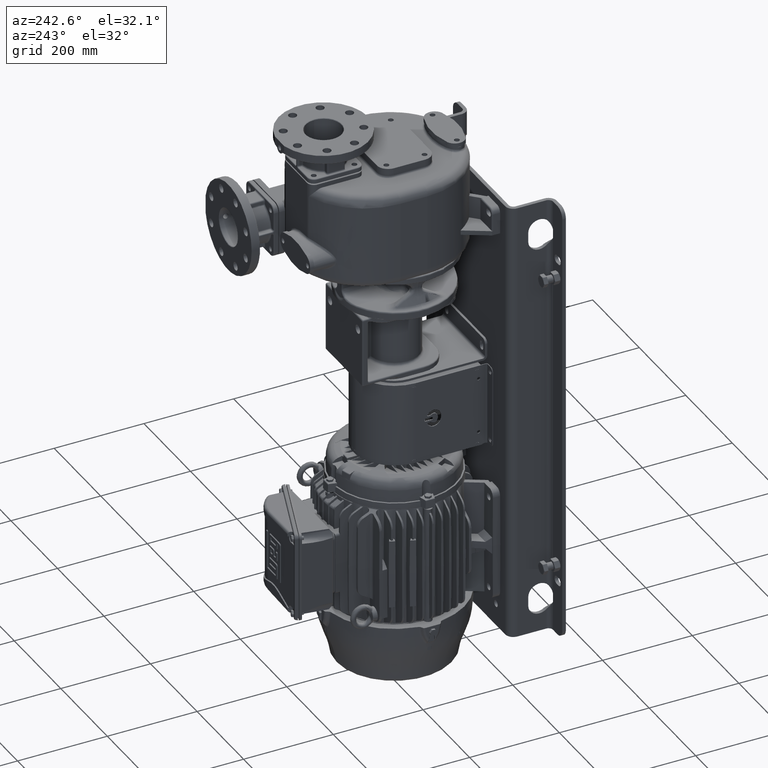
[diagram: clean part render]
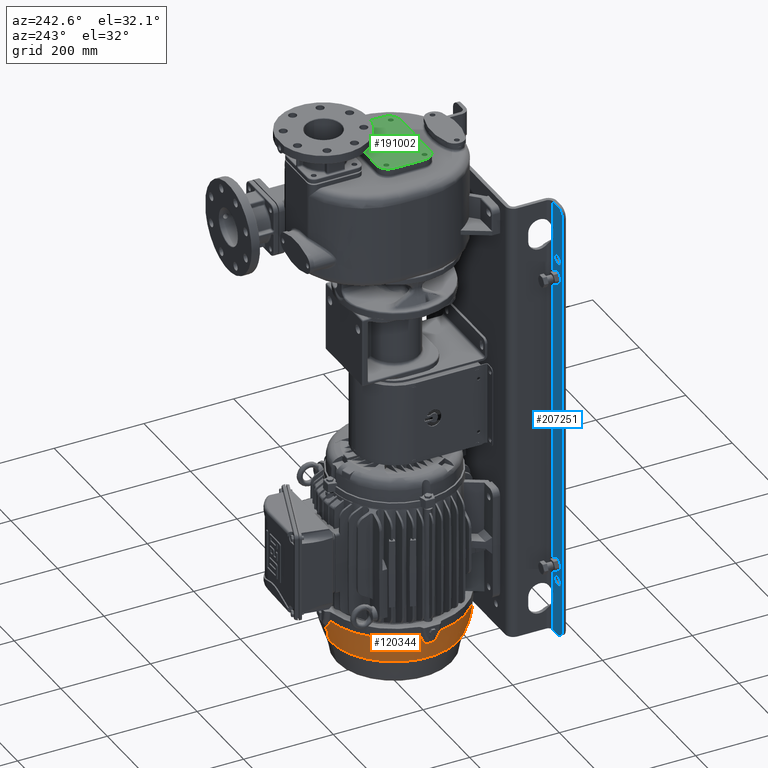
[diagram: same view with three faces highlighted in distinct colors, each labeled with its STEP entity id]
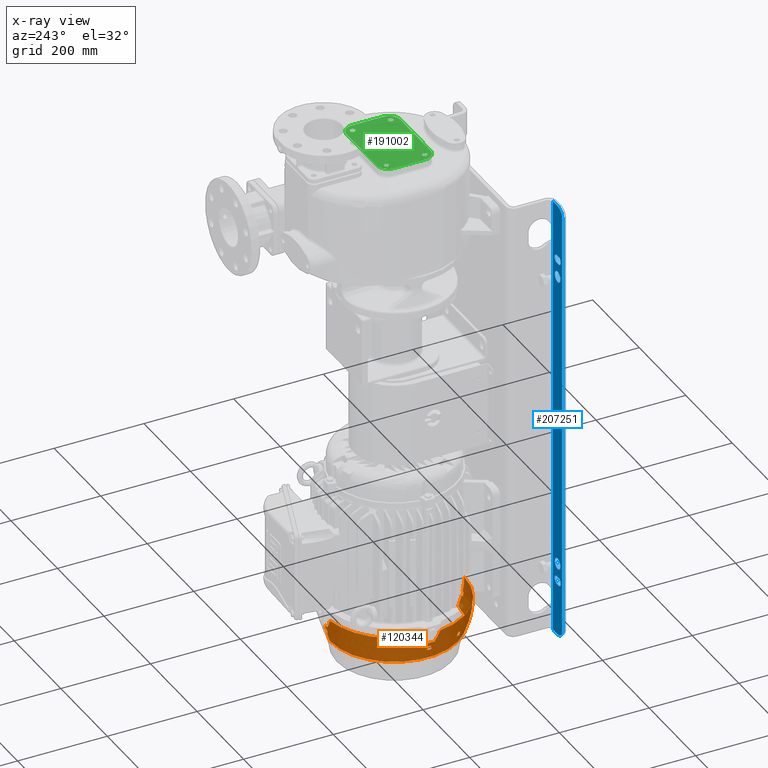
[diagram: x-ray of the same camera — body ghosted, the three highlighted faces saturated]
A machine part, auxiliary view with three faces highlighted in distinct colors.
The next image is the same camera in x-ray (body ghosted, the three faces saturated) — at least one of them is partly hidden behind the body in this view.
Their STEP definitions:

[orange] entity #120344 — the highlighted face is a freeform B-spline surface patch.
#2848=CARTESIAN_POINT('',(-1.546829410694E2,1.830966095473E2,
-9.273078226274E2));
#3170=CARTESIAN_POINT('',(-2.223319337603E1,3.155463572406E2,
-9.273078226274E2));
#3192=CARTESIAN_POINT('',(-9.687282657235E0,3.146830149092E2,
-9.500706796612E2));
#3193=CARTESIAN_POINT('',(-1.032344296403E1,3.147739370802E2,
-9.492482971921E2));
#3194=CARTESIAN_POINT('',(-1.160554716031E1,3.149473445518E2,
-9.475267132512E2));
#3195=CARTESIAN_POINT('',(-1.405823974870E1,3.152381264581E2,
-9.439578630781E2));
#3196=CARTESIAN_POINT('',(-1.800920915479E1,3.155929979356E2,
-9.374233946356E2));
#3197=CARTESIAN_POINT('',(-2.072896114944E1,3.156345445629E2,
-9.314553905696E2));
#3198=CARTESIAN_POINT('',(-2.223319337603E1,3.155463572406E2,
-9.273078226274E2));
#3207=CARTESIAN_POINT('',(-4.996365891526E0,3.111151791804E2,
-9.679797882218E2));
#3208=CARTESIAN_POINT('',(-4.759524846003E0,3.111143174767E2,
-9.680126953586E2));
#3209=CARTESIAN_POINT('',(-4.285447503480E0,3.111127171735E2,
-9.680738084731E2));
#3210=CARTESIAN_POINT('',(-3.573055644327E0,3.111106852827E2,
-9.681514032528E2));
#3211=CARTESIAN_POINT('',(-2.859667222622E0,3.111090225045E2,
-9.682149021876E2));
#3212=CARTESIAN_POINT('',(-2.145461301464E0,3.111077289840E2,
-9.682642997456E2));
#3213=CARTESIAN_POINT('',(-1.430651185991E0,3.111068049160E2,
-9.682995884786E2));
#3214=CARTESIAN_POINT('',(-7.154163929987E-1,3.111062504219E2,
-9.683207637526E2));
#3215=CARTESIAN_POINT('',(-2.384983935840E-1,3.111061271948E2,
-9.683254696063E2));
#3216=CARTESIAN_POINT('',(8.132215580836E-14,3.111061271948E2,
-9.683254696063E2));
#3218=CARTESIAN_POINT('',(-4.395294974494E0,3.125524052069E2,
-9.622609804543E2));
#3219=CARTESIAN_POINT('',(-4.462354123723E0,3.124032581129E2,
-9.628990056400E2));
#3220=CARTESIAN_POINT('',(-4.596290257068E0,3.120979329580E2,
-9.641733228263E2));
#3221=CARTESIAN_POINT('',(-4.796662675630E0,3.116188204007E2,
-9.660797390430E2));
#3222=CARTESIAN_POINT('',(-4.929860497553E0,3.112853991745E2,
-9.673470316653E2));
#3223=CARTESIAN_POINT('',(-4.996365891526E0,3.111151791804E2,
-9.679797882218E2));
#3225=CARTESIAN_POINT('',(-9.687282657235E0,3.146830149092E2,
-9.500706796612E2));
#3226=CARTESIAN_POINT('',(-8.101547966337E0,3.147930411175E2,
-9.500069075483E2));
#3227=CARTESIAN_POINT('',(-5.696148659698E0,3.149188859736E2,
-9.499339676024E2));
#3228=CARTESIAN_POINT('',(-2.462804032082E0,3.150041301959E2,
-9.498845592050E2));
#3229=CARTESIAN_POINT('',(-8.205831939437E-1,3.150185655984E2,
-9.498761920827E2));
#3230=CARTESIAN_POINT('',(8.991995575907E-7,3.150185656988E2,
-9.498761920245E2));
#3232=CARTESIAN_POINT('',(6.938893903907E-14,1.608634161713E2,
-9.273078226274E2));
#3233=DIRECTION('',(0.E0,0.E0,-1.E0));
#3234=DIRECTION('',(-9.898276210414E-1,1.422718546429E-1,0.E0));
#3235=AXIS2_PLACEMENT_3D('',#3232,#3233,#3234);
#3237=CARTESIAN_POINT('',(-1.538195987385E2,1.705506988285E2,
-9.500706796613E2));
#3238=CARTESIAN_POINT('',(-1.539105209082E2,1.711868591132E2,
-9.492482972167E2));
#3239=CARTESIAN_POINT('',(-1.540839289943E2,1.724689598965E2,
-9.475267107830E2));
#3240=CARTESIAN_POINT('',(-1.543747105733E2,1.749216541778E2,
-9.439578620404E2));
#3241=CARTESIAN_POINT('',(-1.547295823562E2,1.788726216642E2,
-9.374233927215E2));
#3242=CARTESIAN_POINT('',(-1.547711283866E2,1.815923773620E2,
-9.314553904306E2));
#3243=CARTESIAN_POINT('',(-1.546829410694E2,1.830966095473E2,
-9.273078226274E2));
#3245=CARTESIAN_POINT('',(-1.538195987380E2,1.511761335140E2,
-9.500706796612E2));
#3246=CARTESIAN_POINT('',(-1.539296249462E2,1.527618682050E2,
-9.500069075481E2));
#3247=CARTESIAN_POINT('',(-1.540554697950E2,1.551672679890E2,
-9.499339676484E2));
#3248=CARTESIAN_POINT('',(-1.541407385713E2,1.584015418145E2,
-9.498845448915E2));
#3249=CARTESIAN_POINT('',(-1.541623794319E2,1.608662840086E2,
-9.498720016945E2));
#3250=CARTESIAN_POINT('',(-1.541406405168E2,1.633306506736E2,
-9.498846017248E2));
#3251=CARTESIAN_POINT('',(-1.540552943280E2,1.665634731487E2,
-9.499340693506E2));
#3252=CARTESIAN_POINT('',(-1.539294997322E2,1.689667697647E2,
-9.500069801237E2));
#3253=CARTESIAN_POINT('',(-1.538195987385E2,1.705506988285E2,
-9.500706796613E2));
#3255=CARTESIAN_POINT('',(6.938893903907E-14,1.608634161713E2,
-9.273078226274E2));
#3256=DIRECTION('',(0.E0,0.E0,-1.E0));
#3257=DIRECTION('',(0.E0,-1.E0,0.E0));
#3258=AXIS2_PLACEMENT_3D('',#3255,#3256,#3257);
#3260=CARTESIAN_POINT('',(-4.996365891525E0,1.061165316213E1,
-9.679797882218E2));
#3261=CARTESIAN_POINT('',(-4.929860497552E0,1.044143316800E1,
-9.673470316653E2));
#3262=CARTESIAN_POINT('',(-4.796662675629E0,1.010801194185E1,
-9.660797390430E2));
#3263=CARTESIAN_POINT('',(-4.596290257067E0,9.628899384519E0,
-9.641733228263E2));
#3264=CARTESIAN_POINT('',(-4.462354123723E0,9.323574229621E0,
-9.628990056400E2));
#3265=CARTESIAN_POINT('',(-4.395294974493E0,9.174427135643E0,
-9.622609804543E2));
#3267=CARTESIAN_POINT('',(5.205263688327E-14,1.062070514776E1,
-9.683254696063E2));
#3268=CARTESIAN_POINT('',(-2.384983935840E-1,1.062070514776E1,
-9.683254696063E2));
#3269=CARTESIAN_POINT('',(-7.154163929986E-1,1.062058192064E1,
-9.683207637526E2));
#3270=CARTESIAN_POINT('',(-1.430651185991E0,1.062002742658E1,
-9.682995884786E2));
#3271=CARTESIAN_POINT('',(-2.145461301464E0,1.061910335858E1,
-9.682642997456E2));
#3272=CARTESIAN_POINT('',(-2.859667222622E0,1.061780983800E1,
-9.682149021876E2));
#3273=CARTESIAN_POINT('',(-3.573055644327E0,1.061614705988E1,
-9.681514032528E2));
#3274=CARTESIAN_POINT('',(-4.285447503479E0,1.061411516906E1,
-9.680738084731E2));
#3275=CARTESIAN_POINT('',(-4.759524846003E0,1.061251486584E1,
-9.680126953586E2));
#3276=CARTESIAN_POINT('',(-4.996365891525E0,1.061165316213E1,
-9.679797882218E2));
#3278=CARTESIAN_POINT('',(-1.502517630091E2,1.658597820628E2,
-9.679797882218E2));
#3279=CARTESIAN_POINT('',(-1.504219830033E2,1.657932766688E2,
-9.673470316653E2));
#3280=CARTESIAN_POINT('',(-1.507554042294E2,1.656600788469E2,
-9.660797390430E2));
#3281=CARTESIAN_POINT('',(-1.512345167867E2,1.654597064283E2,
-9.641733228263E2));
#3282=CARTESIAN_POINT('',(-1.515398419416E2,1.653257702950E2,
-9.628990056400E2));
#3283=CARTESIAN_POINT('',(-1.516889890356E2,1.652587111458E2,
-9.622609804543E2));
#3285=CARTESIAN_POINT('',(-1.502517630091E2,1.558670502797E2,
-9.679797882218E2));
#3286=CARTESIAN_POINT('',(-1.502508350058E2,1.561221139203E2,
-9.680152272400E2));
#3287=CARTESIAN_POINT('',(-1.502491217956E2,1.566326929274E2,
-9.680806520963E2));
#3288=CARTESIAN_POINT('',(-1.502469794332E2,1.574000292009E2,
-9.681624656165E2));
#3289=CARTESIAN_POINT('',(-1.502452652050E2,1.581684841797E2,
-9.682279293492E2));
#3290=CARTESIAN_POINT('',(-1.502439792817E2,1.589378316159E2,
-9.682770367783E2));
#3291=CARTESIAN_POINT('',(-1.502431218904E2,1.597078115169E2,
-9.683097792311E2));
#3292=CARTESIAN_POINT('',(-1.502426931599E2,1.604781723725E2,
-9.683261517908E2));
#3293=CARTESIAN_POINT('',(-1.502426931599E2,1.612486599702E2,
-9.683261517908E2));
#3294=CARTESIAN_POINT('',(-1.502431218904E2,1.620190208257E2,
-9.683097792311E2));
#3295=CARTESIAN_POINT('',(-1.502439792817E2,1.627890007267E2,
-9.682770367783E2));
#3296=CARTESIAN_POINT('',(-1.502452652050E2,1.635583481629E2,
-9.682279293492E2));
#3297=CARTESIAN_POINT('',(-1.502469794332E2,1.643268031416E2,
-9.681624656165E2));
#3298=CARTESIAN_POINT('',(-1.502491217956E2,1.650941394152E2,
-9.680806520963E2));
#3299=CARTESIAN_POINT('',(-1.502508350058E2,1.656047184223E2,
-9.680152272400E2));
#3300=CARTESIAN_POINT('',(-1.502517630091E2,1.658597820628E2,
-9.679797882218E2));
#3302=CARTESIAN_POINT('',(-1.516889890356E2,1.564681211968E2,
-9.622609804543E2));
#3303=CARTESIAN_POINT('',(-1.515398419416E2,1.564010620475E2,
-9.628990056400E2));
#3304=CARTESIAN_POINT('',(-1.512345167867E2,1.562671259142E2,
-9.641733228263E2));
#3305=CARTESIAN_POINT('',(-1.507554042294E2,1.560667534956E2,
-9.660797390430E2));
#3306=CARTESIAN_POINT('',(-1.504219830033E2,1.559335556737E2,
-9.673470316653E2));
#3307=CARTESIAN_POINT('',(-1.502517630091E2,1.558670502797E2,
-9.679797882218E2));
#3309=CARTESIAN_POINT('',(-1.326200275243E2,9.006451253822E1,
-9.679797764429E2));
#3310=CARTESIAN_POINT('',(-1.327341896109E2,8.992180721049E1,
-9.673470198696E2));
#3311=CARTESIAN_POINT('',(-1.329563407879E2,8.963974666767E1,
-9.660797445475E2));
#3312=CARTESIAN_POINT('',(-1.332710787008E2,8.922666165206E1,
-9.641733212535E2));
#3313=CARTESIAN_POINT('',(-1.334685298688E2,8.895800723227E1,
-9.628990056400E2));
#3314=CARTESIAN_POINT('',(-1.335641654665E2,8.882535875849E1,
-9.622609804543E2));
#3316=CARTESIAN_POINT('',(-1.276236610518E2,8.141055490675E1,
-9.679797867060E2));
#3317=CARTESIAN_POINT('',(-1.277503892296E2,8.163191055659E1,
-9.680152257334E2));
#3318=CARTESIAN_POINT('',(-1.280041946287E2,8.207494146124E1,
-9.680806527992E2));
#3319=CARTESIAN_POINT('',(-1.283860074798E2,8.274054518547E1,
-9.681624654072E2));
#3320=CARTESIAN_POINT('',(-1.287687502446E2,8.340690362482E1,
-9.682279293660E2));
#3321=CARTESIAN_POINT('',(-1.291523102914E2,8.407382094213E1,
-9.682770367377E2));
#3322=CARTESIAN_POINT('',(-1.295365577743E2,8.474107189336E1,
-9.683097792230E2));
#3323=CARTESIAN_POINT('',(-1.299213670495E2,8.540843857045E1,
-9.683261517929E2));
#3324=CARTESIAN_POINT('',(-1.303066110208E2,8.607570069957E1,
-9.683261517836E2));
#3325=CARTESIAN_POINT('',(-1.306921628875E2,8.674263866993E1,
-9.683097792441E2));
#3326=CARTESIAN_POINT('',(-1.310778954465E2,8.740903223825E1,
-9.682770366382E2));
#3327=CARTESIAN_POINT('',(-1.314636827725E2,8.807466378346E1,
-9.682279296894E2));
#3328=CARTESIAN_POINT('',(-1.318493948423E2,8.873930769547E1,
-9.681624641111E2));
#3329=CARTESIAN_POINT('',(-1.322349179212E2,8.940277052239E1,
-9.680806574828E2));
#3330=CARTESIAN_POINT('',(-1.324916919746E2,8.984408485340E1,
-9.680152154781E2));
#3331=CARTESIAN_POINT('',(-1.326200275243E2,9.006451253822E1,
-9.679797764429E2));
#3333=CARTESIAN_POINT('',(-1.291688704920E2,8.121248454841E1,
-9.622609804543E2));
#3334=CARTESIAN_POINT('',(-1.290061757451E2,8.122898316861E1,
-9.628990056400E2));
#3335=CARTESIAN_POINT('',(-1.286747883727E2,8.126565365650E1,
-9.641733226239E2));
#3336=CARTESIAN_POINT('',(-1.281596783607E2,8.133168231069E1,
-9.660797397514E2));
#3337=CARTESIAN_POINT('',(-1.278043285811E2,8.138304027461E1,
-9.673470301474E2));
#3338=CARTESIAN_POINT('',(-1.276236610518E2,8.141055490675E1,
-9.679797867060E2));
#3340=CARTESIAN_POINT('',(6.938893903907E-14,1.608634161713E2,
-9.910989229696E2));
#3341=DIRECTION('',(0.E0,0.E0,-1.E0));
#3342=DIRECTION('',(0.E0,-1.E0,0.E0));
#3343=AXIS2_PLACEMENT_3D('',#3340,#3341,#3342);
#13245=CARTESIAN_POINT('',(7.228442548792E-14,1.845068572913E2,
-9.218108902496E2));
#13246=DIRECTION('',(-1.E0,0.E0,0.E0));
#13247=DIRECTION('',(0.E0,-9.229443043567E-1,-3.849335151108E-1));
#13248=AXIS2_PLACEMENT_3D('',#13245,#13246,#13247);
#13268=CARTESIAN_POINT('',(7.228442548792E-14,1.845068572913E2,
-9.218108902496E2));
#13269=DIRECTION('',(-1.E0,0.E0,0.E0));
#13270=DIRECTION('',(0.E0,-9.790066335058E-1,-2.038283875021E-1));
#13271=AXIS2_PLACEMENT_3D('',#13268,#13269,#13270);
#13316=CARTESIAN_POINT('',(6.359796614139E-14,1.372199750513E2,
-9.218108902496E2));
#13317=DIRECTION('',(1.E0,0.E0,0.E0));
#13318=DIRECTION('',(0.E0,9.790066335058E-1,-2.038283875021E-1));
#13319=AXIS2_PLACEMENT_3D('',#13316,#13317,#13318);
#13339=CARTESIAN_POINT('',(6.359796614139E-14,1.372199750513E2,
-9.218108902496E2));
#13340=DIRECTION('',(1.E0,0.E0,0.E0));
#13341=DIRECTION('',(0.E0,9.229443043567E-1,-3.849335151108E-1));
#13342=AXIS2_PLACEMENT_3D('',#13339,#13340,#13341);
#13477=CARTESIAN_POINT('',(6.938893903907E-14,1.608634161713E2,-9.585E2));
#13478=DIRECTION('',(0.E0,0.E0,-1.E0));
#13479=DIRECTION('',(0.E0,-1.E0,0.E0));
#13480=AXIS2_PLACEMENT_3D('',#13477,#13478,#13479);
#13507=CARTESIAN_POINT('',(-2.183030139438E-1,8.285819430537E0,-9.585E2));
#13508=CARTESIAN_POINT('',(-2.701018681900E-1,8.285893542637E0,-9.585E2));
#13509=CARTESIAN_POINT('',(-3.737058153765E-1,8.286493616867E0,
-9.585019167964E2));
#13510=CARTESIAN_POINT('',(-5.289106504424E-1,8.288748310066E0,
-9.585105396980E2));
#13511=CARTESIAN_POINT('',(-6.837229032281E-1,8.292355277018E0,
-9.585249020014E2));
#13512=CARTESIAN_POINT('',(-8.379435930611E-1,8.297310815508E0,
-9.585449897632E2));
#13513=CARTESIAN_POINT('',(-9.913756915999E-1,8.303609825506E0,
-9.585707833273E2));
#13514=CARTESIAN_POINT('',(-1.143821751716E0,8.311245797350E0,
-9.586022572848E2));
#13515=CARTESIAN_POINT('',(-1.295084125276E0,8.320210757597E0,
-9.586393802386E2));
#13516=CARTESIAN_POINT('',(-1.444966042214E0,8.330495326627E0,
-9.586821150351E2));
#13517=CARTESIAN_POINT('',(-1.593267673621E0,8.342088380945E0,
-9.587304173484E2));
#13518=CARTESIAN_POINT('',(-1.739791785832E0,8.354977372754E0,
-9.587842369933E2));
#13519=CARTESIAN_POINT('',(-1.884342131868E0,8.369148249410E0,
-9.588435175840E2));
#13520=CARTESIAN_POINT('',(-2.026722771453E0,8.384585346655E0,
-9.589081960746E2));
#13521=CARTESIAN_POINT('',(-2.166738442674E0,8.401271366808E0,
-9.589782026519E2));
#13522=CARTESIAN_POINT('',(-2.304194771773E0,8.419187347414E0,
-9.590534605878E2));
#13523=CARTESIAN_POINT('',(-2.438898356025E0,8.438312598999E0,
-9.591338859600E2));
#13524=CARTESIAN_POINT('',(-2.570657584737E0,8.458624774152E0,
-9.592193879246E2));
#13525=CARTESIAN_POINT('',(-2.699279195501E0,8.480099195230E0,
-9.593098658626E2));
#13526=CARTESIAN_POINT('',(-2.824575312794E0,8.502709862350E0,
-9.594052136012E2));
#13527=CARTESIAN_POINT('',(-2.946359778992E0,8.526428873011E0,
-9.595053169507E2));
#13528=CARTESIAN_POINT('',(-3.064449307736E0,8.551226514667E0,
-9.596100540696E2));
#13529=CARTESIAN_POINT('',(-3.178663521755E0,8.577071193400E0,
-9.597192951392E2));
#13530=CARTESIAN_POINT('',(-3.288825501065E0,8.603929446018E0,
-9.598329023878E2));
#13531=CARTESIAN_POINT('',(-3.394762327507E0,8.631765969143E0,
-9.599507301869E2));
#13532=CARTESIAN_POINT('',(-3.496305032256E0,8.660543505913E0,
-9.600726245443E2));
#13533=CARTESIAN_POINT('',(-3.593287855403E0,8.690222399794E0,
-9.601984211808E2));
#13534=CARTESIAN_POINT('',(-3.685553000929E0,8.720761881164E0,
-9.603279509524E2));
#13535=CARTESIAN_POINT('',(-3.772947848107E0,8.752119231282E0,
-9.604610362818E2));
#13536=CARTESIAN_POINT('',(-3.855326233438E0,8.784250031410E0,
-9.605974921834E2));
#13537=CARTESIAN_POINT('',(-3.932548772323E0,8.817108173265E0,
-9.607371262788E2));
#13538=CARTESIAN_POINT('',(-4.004483441047E0,8.850645955904E0,
-9.608797391786E2));
#13539=CARTESIAN_POINT('',(-4.071005952043E0,8.884814122431E0,
-9.610251246094E2));
#13540=CARTESIAN_POINT('',(-4.131999972072E0,8.919561773837E0,
-9.611730690182E2));
#13541=CARTESIAN_POINT('',(-4.187357803529E0,8.954836513266E0,
-9.613233521566E2));
#13542=CARTESIAN_POINT('',(-4.236981072497E0,8.990584581937E0,
-9.614757476303E2));
#13543=CARTESIAN_POINT('',(-4.280783023225E0,9.026752661063E0,
-9.616300305626E2));
#13544=CARTESIAN_POINT('',(-4.318683562743E0,9.063284258486E0,
-9.617859621698E2));
#13545=CARTESIAN_POINT('',(-4.350607687131E0,9.100114338525E0,
-9.619432667587E2));
#13546=CARTESIAN_POINT('',(-4.376496634189E0,9.137176414602E0,
-9.621016619227E2));
#13547=CARTESIAN_POINT('',(-4.389706091329E0,9.161996830576E0,
-9.622078057830E2));
#13548=CARTESIAN_POINT('',(-4.395294974493E0,9.174427135643E0,
-9.622609804543E2));
#15037=CARTESIAN_POINT('',(-9.687282657235E0,3.146830149092E2,
-9.500706796612E2));
#16105=CARTESIAN_POINT('',(6.938893903907E-14,1.608634161713E2,-9.585E2));
#16106=DIRECTION('',(0.E0,0.E0,-1.E0));
#16107=DIRECTION('',(-1.430765690164E-3,9.999989764542E-1,0.E0));
#16108=AXIS2_PLACEMENT_3D('',#16105,#16106,#16107);
#16118=CARTESIAN_POINT('',(-4.395294974494E0,3.125524052069E2,
-9.622609804543E2));
#16119=CARTESIAN_POINT('',(-4.389706096753E0,3.125648354999E2,
-9.622078058346E2));
#16120=CARTESIAN_POINT('',(-4.376496654810E0,3.125896558956E2,
-9.621016620610E2));
#16121=CARTESIAN_POINT('',(-4.350607691778E0,3.126267179972E2,
-9.619432667877E2));
#16122=CARTESIAN_POINT('',(-4.318683616843E0,3.126635480243E2,
-9.617859624251E2));
#16123=CARTESIAN_POINT('',(-4.280783110606E0,3.127000796033E2,
-9.616300308961E2));
#16124=CARTESIAN_POINT('',(-4.236981168330E0,3.127362476885E2,
-9.614757479377E2));
#16125=CARTESIAN_POINT('',(-4.187357844910E0,3.127719958016E2,
-9.613233522746E2));
#16126=CARTESIAN_POINT('',(-4.132000036480E0,3.128072705312E2,
-9.611730691778E2));
#16127=CARTESIAN_POINT('',(-4.071005891144E0,3.128420182545E2,
-9.610251244630E2));
#16128=CARTESIAN_POINT('',(-4.004483419620E0,3.128761863950E2,
-9.608797391428E2));
#16129=CARTESIAN_POINT('',(-3.932548874768E0,3.129097241228E2,
-9.607371264763E2));
#16130=CARTESIAN_POINT('',(-3.855326348147E0,3.129425822646E2,
-9.605974923813E2));
#16131=CARTESIAN_POINT('',(-3.772947963206E0,3.129747130685E2,
-9.604610364631E2));
#16132=CARTESIAN_POINT('',(-3.685553064951E0,3.130060704397E2,
-9.603279510442E2));
#16133=CARTESIAN_POINT('',(-3.593287848738E0,3.130366099464E2,
-9.601984211652E2));
#16134=CARTESIAN_POINT('',(-3.496304759773E0,3.130662889184E2,
-9.600726241978E2));
#16135=CARTESIAN_POINT('',(-3.394762023930E0,3.130950664550E2,
-9.599507298416E2));
#16136=CARTESIAN_POINT('',(-3.288825455942E0,3.131229029065E2,
-9.598329023456E2));
#16137=CARTESIAN_POINT('',(-3.178663591042E0,3.131497611326E2,
-9.597192952091E2));
#16138=CARTESIAN_POINT('',(-3.064449405363E0,3.131756058066E2,
-9.596100541597E2));
#16139=CARTESIAN_POINT('',(-2.946359842050E0,3.132004034573E2,
-9.595053170022E2));
#16140=CARTESIAN_POINT('',(-2.824575242050E0,3.132241224939E2,
-9.594052135433E2));
#16141=CARTESIAN_POINT('',(-2.699279009885E0,3.132467331807E2,
-9.593098657218E2));
#16142=CARTESIAN_POINT('',(-2.570657098438E0,3.132682076468E2,
-9.592193875944E2));
#16143=CARTESIAN_POINT('',(-2.438898028277E0,3.132885197911E2,
-9.591338857598E2));
#16144=CARTESIAN_POINT('',(-2.304194558074E0,3.133076450240E2,
-9.590534604662E2));
#16145=CARTESIAN_POINT('',(-2.166738255313E0,3.133255609989E2,
-9.589782025544E2));
#16146=CARTESIAN_POINT('',(-2.026722629853E0,3.133422470119E2,
-9.589081960076E2));
#16147=CARTESIAN_POINT('',(-1.884341988769E0,3.133576841080E2,
-9.588435175218E2));
#16148=CARTESIAN_POINT('',(-1.739791588663E0,3.133718549884E2,
-9.587842369155E2));
#16149=CARTESIAN_POINT('',(-1.593267344334E0,3.133847439896E2,
-9.587304172316E2));
#16150=CARTESIAN_POINT('',(-1.444965512553E0,3.133963370551E2,
-9.586821148721E2));
#16151=CARTESIAN_POINT('',(-1.295083591978E0,3.134066216190E2,
-9.586393800973E2));
#16152=CARTESIAN_POINT('',(-1.143821228276E0,3.134155865735E2,
-9.586022571680E2));
#16153=CARTESIAN_POINT('',(-9.913753425096E-1,3.134232225325E2,
-9.585707832637E2));
#16154=CARTESIAN_POINT('',(-8.379432776019E-1,3.134295215386E2,
-9.585449897161E2));
#16155=CARTESIAN_POINT('',(-6.837226045909E-1,3.134344770736E2,
-9.585249019688E2));
#16156=CARTESIAN_POINT('',(-5.289104507132E-1,3.134380840358E2,
-9.585105396850E2));
#16157=CARTESIAN_POINT('',(-3.737057626428E-1,3.134403387259E2,
-9.585019167958E2));
#16158=CARTESIAN_POINT('',(-2.701018553656E-1,3.134409387999E2,-9.585E2));
#16159=CARTESIAN_POINT('',(-2.183030139473E-1,3.134410129120E2,-9.585E2));
#16592=CARTESIAN_POINT('',(-1.538195987385E2,1.705506988285E2,
-9.500706796613E2));
#17746=CARTESIAN_POINT('',(-1.546829410694E2,1.386302227952E2,
-9.273078226274E2));
#17768=CARTESIAN_POINT('',(-1.538195987380E2,1.511761335140E2,
-9.500706796612E2));
#17769=CARTESIAN_POINT('',(-1.539105209078E2,1.505399732262E2,
-9.492482972132E2));
#17770=CARTESIAN_POINT('',(-1.540839289088E2,1.492578719664E2,
-9.475267111277E2));
#17771=CARTESIAN_POINT('',(-1.543747105331E2,1.468051779214E2,
-9.439578621853E2));
#17772=CARTESIAN_POINT('',(-1.547295822738E2,1.428542101679E2,
-9.374233929885E2));
#17773=CARTESIAN_POINT('',(-1.547711283867E2,1.401344549828E2,
-9.314553904514E2));
#17774=CARTESIAN_POINT('',(-1.546829410694E2,1.386302227952E2,
-9.273078226274E2));
#17808=CARTESIAN_POINT('',(-1.538195987380E2,1.511761335140E2,
-9.500706796612E2));
#17858=CARTESIAN_POINT('',(-1.516889890356E2,1.564681211968E2,
-9.622609804543E2));
#17859=CARTESIAN_POINT('',(-1.517014193286E2,1.564737100745E2,
-9.622078058346E2));
#17860=CARTESIAN_POINT('',(-1.517262397243E2,1.564869195165E2,
-9.621016620610E2));
#17861=CARTESIAN_POINT('',(-1.517633018260E2,1.565128084795E2,
-9.619432667877E2));
#17862=CARTESIAN_POINT('',(-1.518001318530E2,1.565447325544E2,
-9.617859624251E2));
#17863=CARTESIAN_POINT('',(-1.518366634321E2,1.565826330607E2,
-9.616300308961E2));
#17864=CARTESIAN_POINT('',(-1.518728315172E2,1.566264350029E2,
-9.614757479377E2));
#17865=CARTESIAN_POINT('',(-1.519085796303E2,1.566760583264E2,
-9.613233522746E2));
#17866=CARTESIAN_POINT('',(-1.519438543599E2,1.567314161348E2,
-9.611730691778E2));
#17867=CARTESIAN_POINT('',(-1.519786020832E2,1.567924102801E2,
-9.610251244630E2));
#17868=CARTESIAN_POINT('',(-1.520127702238E2,1.568589327516E2,
-9.608797391428E2));
#17869=CARTESIAN_POINT('',(-1.520463079516E2,1.569308672965E2,
-9.607371264763E2));
#17870=CARTESIAN_POINT('',(-1.520791660933E2,1.570080898231E2,
-9.605974923813E2));
#17871=CARTESIAN_POINT('',(-1.521112968973E2,1.570904682081E2,
-9.604610364631E2));
#17872=CARTESIAN_POINT('',(-1.521426542685E2,1.571778631063E2,
-9.603279510442E2));
#17873=CARTESIAN_POINT('',(-1.521731937751E2,1.572701283225E2,
-9.601984211652E2));
#17874=CARTESIAN_POINT('',(-1.522028727471E2,1.573671114115E2,
-9.600726241978E2));
#17875=CARTESIAN_POINT('',(-1.522316502837E2,1.574686541473E2,
-9.599507298416E2));
#17876=CARTESIAN_POINT('',(-1.522594867352E2,1.575745907153E2,
-9.598329023456E2));
#17877=CARTESIAN_POINT('',(-1.522863449613E2,1.576847525802E2,
-9.597192952091E2));
#17878=CARTESIAN_POINT('',(-1.523121896353E2,1.577989667659E2,
-9.596100541597E2));
#17879=CARTESIAN_POINT('',(-1.523369872860E2,1.579170563292E2,
-9.595053170022E2));
#17880=CARTESIAN_POINT('',(-1.523607063226E2,1.580388409292E2,
-9.594052135433E2));
#17881=CARTESIAN_POINT('',(-1.523833170094E2,1.581641371614E2,
-9.593098657218E2));
#17882=CARTESIAN_POINT('',(-1.524047914755E2,1.582927590728E2,
-9.592193875944E2));
#17883=CARTESIAN_POINT('',(-1.524251036198E2,1.584245181430E2,
-9.591338857598E2));
#17884=CARTESIAN_POINT('',(-1.524442288528E2,1.585592216132E2,
-9.590534604662E2));
#17885=CARTESIAN_POINT('',(-1.524621448277E2,1.586966779160E2,
-9.589782025544E2));
#17886=CARTESIAN_POINT('',(-1.524788308406E2,1.588366935414E2,
-9.589081960076E2));
#17887=CARTESIAN_POINT('',(-1.524942679367E2,1.589790741825E2,
-9.588435175218E2));
#17888=CARTESIAN_POINT('',(-1.525084388171E2,1.591236245826E2,
-9.587842369155E2));
#17889=CARTESIAN_POINT('',(-1.525213278183E2,1.592701488269E2,
-9.587304172316E2));
#17890=CARTESIAN_POINT('',(-1.525329208838E2,1.594184506587E2,
-9.586821148721E2));
#17891=CARTESIAN_POINT('',(-1.525432054477E2,1.595683325793E2,
-9.586393800973E2));
#17892=CARTESIAN_POINT('',(-1.525521704022E2,1.597195949430E2,
-9.586022571680E2));
#17893=CARTESIAN_POINT('',(-1.525598063613E2,1.598720408288E2,
-9.585707832637E2));
#17894=CARTESIAN_POINT('',(-1.525661053673E2,1.600254728937E2,
-9.585449897161E2));
#17895=CARTESIAN_POINT('',(-1.525710609024E2,1.601796935667E2,
-9.585249019688E2));
#17896=CARTESIAN_POINT('',(-1.525746678646E2,1.603345057206E2,
-9.585105396850E2));
#17897=CARTESIAN_POINT('',(-1.525769225546E2,1.604897104086E2,
-9.585019167958E2));
#17898=CARTESIAN_POINT('',(-1.525775226286E2,1.605933143159E2,-9.585E2));
#17899=CARTESIAN_POINT('',(-1.525775967407E2,1.606451131573E2,-9.585E2));
#17925=CARTESIAN_POINT('',(6.938893903907E-14,1.608634161713E2,-9.585E2));
#17926=DIRECTION('',(0.E0,0.E0,-1.E0));
#17927=DIRECTION('',(-9.999989764542E-1,-1.430765690175E-3,0.E0));
#17928=AXIS2_PLACEMENT_3D('',#17925,#17926,#17927);
#17946=CARTESIAN_POINT('',(-1.525775967407E2,1.610817191852E2,-9.585E2));
#17947=CARTESIAN_POINT('',(-1.525775226286E2,1.611335180395E2,-9.585E2));
#17948=CARTESIAN_POINT('',(-1.525769225544E2,1.612371219866E2,
-9.585019167964E2));
#17949=CARTESIAN_POINT('',(-1.525746678612E2,1.613923268217E2,
-9.585105396980E2));
#17950=CARTESIAN_POINT('',(-1.525710608942E2,1.615471390745E2,
-9.585249020014E2));
#17951=CARTESIAN_POINT('',(-1.525661053558E2,1.617013597643E2,
-9.585449897632E2));
#17952=CARTESIAN_POINT('',(-1.525598063458E2,1.618547918629E2,
-9.585707833273E2));
#17953=CARTESIAN_POINT('',(-1.525521703739E2,1.620072379230E2,
-9.586022572848E2));
#17954=CARTESIAN_POINT('',(-1.525432054137E2,1.621585002965E2,
-9.586393802386E2));
#17955=CARTESIAN_POINT('',(-1.525329208446E2,1.623083822135E2,
-9.586821150351E2));
#17956=CARTESIAN_POINT('',(-1.525213277903E2,1.624566838449E2,
-9.587304173484E2));
#17957=CARTESIAN_POINT('',(-1.525084387985E2,1.626032079571E2,
-9.587842369933E2));
#17958=CARTESIAN_POINT('',(-1.524942679219E2,1.627477583031E2,
-9.588435175840E2));
#17959=CARTESIAN_POINT('',(-1.524788308246E2,1.628901389427E2,
-9.589081960746E2));
#17960=CARTESIAN_POINT('',(-1.524621448045E2,1.630301546139E2,
-9.589782026519E2));
#17961=CARTESIAN_POINT('',(-1.524442288239E2,1.631676109430E2,
-9.590534605878E2));
#17962=CARTESIAN_POINT('',(-1.524251035723E2,1.633023145273E2,
-9.591338859600E2));
#17963=CARTESIAN_POINT('',(-1.524047913971E2,1.634340737560E2,
-9.592193879246E2));
#17964=CARTESIAN_POINT('',(-1.523833169760E2,1.635626953668E2,
-9.593098658626E2));
#17965=CARTESIAN_POINT('',(-1.523607063089E2,1.636879914841E2,
-9.594052136012E2));
#17966=CARTESIAN_POINT('',(-1.523369872983E2,1.638097759503E2,
-9.595053169507E2));
#17967=CARTESIAN_POINT('',(-1.523121896566E2,1.639278654790E2,
-9.596100540696E2));
#17968=CARTESIAN_POINT('',(-1.522863449779E2,1.640420796930E2,
-9.597192951392E2));
#17969=CARTESIAN_POINT('',(-1.522594867252E2,1.641522416723E2,
-9.598329023878E2));
#17970=CARTESIAN_POINT('',(-1.522316502021E2,1.642581784988E2,
-9.599507301869E2));
#17971=CARTESIAN_POINT('',(-1.522028726654E2,1.643597212035E2,
-9.600726245443E2));
#17972=CARTESIAN_POINT('',(-1.521731937715E2,1.644567040267E2,
-9.601984211808E2));
#17973=CARTESIAN_POINT('',(-1.521426542901E2,1.645489691722E2,
-9.603279509524E2));
#17974=CARTESIAN_POINT('',(-1.521112969400E2,1.646363640194E2,
-9.604610362818E2));
#17975=CARTESIAN_POINT('',(-1.520791661399E2,1.647187424047E2,
-9.605974921834E2));
#17976=CARTESIAN_POINT('',(-1.520463079980E2,1.647959649436E2,
-9.607371262788E2));
#17977=CARTESIAN_POINT('',(-1.520127702154E2,1.648678996123E2,
-9.608797391786E2));
#17978=CARTESIAN_POINT('',(-1.519786020488E2,1.649344221233E2,
-9.610251246094E2));
#17979=CARTESIAN_POINT('',(-1.519438543974E2,1.649954161433E2,
-9.611730690182E2));
#17980=CARTESIAN_POINT('',(-1.519085796580E2,1.650507739748E2,
-9.613233521566E2));
#17981=CARTESIAN_POINT('',(-1.518728315893E2,1.651003972438E2,
-9.614757476303E2));
#17982=CARTESIAN_POINT('',(-1.518366635102E2,1.651441991945E2,
-9.616300305626E2));
#17983=CARTESIAN_POINT('',(-1.518001319128E2,1.651820997340E2,
-9.617859621698E2));
#17984=CARTESIAN_POINT('',(-1.517633018327E2,1.652140238584E2,
-9.619432667587E2));
#17985=CARTESIAN_POINT('',(-1.517262397567E2,1.652399128055E2,
-9.621016619227E2));
#17986=CARTESIAN_POINT('',(-1.517014193407E2,1.652531222626E2,
-9.622078057830E2));
#17987=CARTESIAN_POINT('',(-1.516889890356E2,1.652587111458E2,
-9.622609804543E2));
#18001=CARTESIAN_POINT('',(-1.291688704920E2,8.121248454841E1,
-9.622609804543E2));
#18002=CARTESIAN_POINT('',(-1.291824298799E2,8.121110951206E1,
-9.622078058364E2));
#18003=CARTESIAN_POINT('',(-1.292105296931E2,8.121013902648E1,
-9.621016620664E2));
#18004=CARTESIAN_POINT('',(-1.292555708946E2,8.121402847493E1,
-9.619432667979E2));
#18005=CARTESIAN_POINT('',(-1.293034286697E2,8.122326052064E1,
-9.617859624391E2));
#18006=CARTESIAN_POINT('',(-1.293540161971E2,8.123781753151E1,
-9.616300309130E2));
#18007=CARTESIAN_POINT('',(-1.294072396469E2,8.125766708245E1,
-9.614757479592E2));
#18008=CARTESIAN_POINT('',(-1.294630100794E2,8.128276808252E1,
-9.613233523035E2));
#18009=CARTESIAN_POINT('',(-1.295212377911E2,8.131307198290E1,
-9.611730692165E2));
#18010=CARTESIAN_POINT('',(-1.295818272680E2,8.134852059547E1,
-9.610251245160E2));
#18011=CARTESIAN_POINT('',(-1.296446789741E2,8.138904666918E1,
-9.608797392096E2));
#18012=CARTESIAN_POINT('',(-1.297096907664E2,8.143457494367E1,
-9.607371265487E2));
#18013=CARTESIAN_POINT('',(-1.297767580205E2,8.148502254486E1,
-9.605974924389E2));
#18014=CARTESIAN_POINT('',(-1.298457733188E2,8.154029892653E1,
-9.604610364918E2));
#18015=CARTESIAN_POINT('',(-1.299166270657E2,8.160030645773E1,
-9.603279510392E2));
#18016=CARTESIAN_POINT('',(-1.299892076711E2,8.166494073376E1,
-9.601984211457E2));
#18017=CARTESIAN_POINT('',(-1.300634019531E2,8.173409106130E1,
-9.600726241898E2));
#18018=CARTESIAN_POINT('',(-1.301390953845E2,8.180764086798E1,
-9.599507298565E2));
#18019=CARTESIAN_POINT('',(-1.302161707244E2,8.188546638211E1,
-9.598329023871E2));
#18020=CARTESIAN_POINT('',(-1.302945115433E2,8.196744022078E1,
-9.597192952762E2));
#18021=CARTESIAN_POINT('',(-1.303740007580E2,8.205343024375E1,
-9.596100542529E2));
#18022=CARTESIAN_POINT('',(-1.304545209410E2,8.214329998390E1,
-9.595053170821E2));
#18023=CARTESIAN_POINT('',(-1.305359545749E2,8.223690907383E1,
-9.594052135634E2));
#18024=CARTESIAN_POINT('',(-1.306181841788E2,8.233411352022E1,
-9.593098656747E2));
#18025=CARTESIAN_POINT('',(-1.307010926200E2,8.243476619570E1,
-9.592193874952E2));
#18026=CARTESIAN_POINT('',(-1.307845630102E2,8.253871685668E1,
-9.591338856457E2));
#18027=CARTESIAN_POINT('',(-1.308684776668E2,8.264581085058E1,
-9.590534603754E2));
#18028=CARTESIAN_POINT('',(-1.309527214604E2,8.275589345397E1,
-9.589782025107E2));
#18029=CARTESIAN_POINT('',(-1.310371797491E2,8.286880748992E1,
-9.589081959949E2));
#18030=CARTESIAN_POINT('',(-1.311217389585E2,8.298439415520E1,
-9.588435175311E2));
#18031=CARTESIAN_POINT('',(-1.312062864785E2,8.310249300128E1,
-9.587842369385E2));
#18032=CARTESIAN_POINT('',(-1.312907108271E2,8.322294225154E1,
-9.587304172370E2));
#18033=CARTESIAN_POINT('',(-1.313749016822E2,8.334557894573E1,
-9.586821148493E2));
#18034=CARTESIAN_POINT('',(-1.314587493935E2,8.347023830192E1,
-9.586393800498E2));
#18035=CARTESIAN_POINT('',(-1.315421444974E2,8.359675294447E1,
-9.586022571091E2));
#18036=CARTESIAN_POINT('',(-1.316249803949E2,8.372495701083E1,
-9.585707832079E2));
#18037=CARTESIAN_POINT('',(-1.317071514999E2,8.385468353669E1,
-9.585449896795E2));
#18038=CARTESIAN_POINT('',(-1.317885533965E2,8.398576469801E1,
-9.585249019541E2));
#18039=CARTESIAN_POINT('',(-1.318690831497E2,8.411803240314E1,
-9.585105396814E2));
#18040=CARTESIAN_POINT('',(-1.319486380892E2,8.425131622199E1,
-9.585019167957E2));
#18041=CARTESIAN_POINT('',(-1.320009597158E2,8.434073978963E1,-9.585E2));
#18042=CARTESIAN_POINT('',(-1.320269233189E2,8.438556184510E1,-9.585E2));
#18068=CARTESIAN_POINT('',(6.938893903907E-14,1.608634161713E2,-9.585E2));
#18069=DIRECTION('',(0.E0,0.E0,-1.E0));
#18070=DIRECTION('',(-8.653091345227E-1,-5.012385676617E-1,0.E0));
#18071=AXIS2_PLACEMENT_3D('',#18068,#18069,#18070);
#18093=CARTESIAN_POINT('',(-1.322452263328E2,8.476367375670E1,-9.585E2));
#18094=CARTESIAN_POINT('',(-1.322710615742E2,8.480856993155E1,-9.585E2));
#18095=CARTESIAN_POINT('',(-1.323223438735E2,8.489859362791E1,
-9.585019167961E2));
#18096=CARTESIAN_POINT('',(-1.323979937040E2,8.503413236651E1,
-9.585105397022E2));
#18097=CARTESIAN_POINT('',(-1.324722761786E2,8.517000733015E1,
-9.585249020249E2));
#18098=CARTESIAN_POINT('',(-1.325450949673E2,8.530604426398E1,
-9.585449898180E2));
#18099=CARTESIAN_POINT('',(-1.326163559270E2,8.544206989756E1,
-9.585707834046E2));
#18100=CARTESIAN_POINT('',(-1.326859659758E2,8.557790998256E1,
-9.586022573627E2));
#18101=CARTESIAN_POINT('',(-1.327538332375E2,8.571338944353E1,
-9.586393803066E2));
#18102=CARTESIAN_POINT('',(-1.328198674573E2,8.584833319706E1,
-9.586821150862E2));
#18103=CARTESIAN_POINT('',(-1.328839783591E2,8.598256263543E1,
-9.587304173795E2));
#18104=CARTESIAN_POINT('',(-1.329460781961E2,8.611590068254E1,
-9.587842370050E2));
#18105=CARTESIAN_POINT('',(-1.330060810390E2,8.624817041273E1,
-9.588435176049E2));
#18106=CARTESIAN_POINT('',(-1.330639024874E2,8.637919432113E1,
-9.589081961532E2));
#18107=CARTESIAN_POINT('',(-1.331194598486E2,8.650879456604E1,
-9.589782027982E2));
#18108=CARTESIAN_POINT('',(-1.331726723456E2,8.663679330363E1,
-9.590534607931E2));
#18109=CARTESIAN_POINT('',(-1.332234611819E2,8.676301266234E1,
-9.591338861879E2));
#18110=CARTESIAN_POINT('',(-1.332717499153E2,8.688727554640E1,
-9.592193881404E2));
#18111=CARTESIAN_POINT('',(-1.333174632984E2,8.700940227477E1,
-9.593098660451E2));
#18112=CARTESIAN_POINT('',(-1.333605299240E2,8.712921717944E1,
-9.594052137558E2));
#18113=CARTESIAN_POINT('',(-1.334008808775E2,8.724654509383E1,
-9.595053170876E2));
#18114=CARTESIAN_POINT('',(-1.334384502434E2,8.736121242019E1,
-9.596100541908E2));
#18115=CARTESIAN_POINT('',(-1.334731752025E2,8.747304717896E1,
-9.597192952768E2));
#18116=CARTESIAN_POINT('',(-1.335049962654E2,8.758187939500E1,
-9.598329025533E2));
#18117=CARTESIAN_POINT('',(-1.335338575425E2,8.768754165135E1,
-9.599507303776E2));
#18118=CARTESIAN_POINT('',(-1.335597068139E2,8.778986898368E1,
-9.600726247508E2));
#18119=CARTESIAN_POINT('',(-1.335824955431E2,8.788869800867E1,
-9.601984213881E2));
#18120=CARTESIAN_POINT('',(-1.336021801404E2,8.798387168422E1,
-9.603279511393E2));
#18121=CARTESIAN_POINT('',(-1.336187212938E2,8.807523648827E1,
-9.604610364383E2));
#18122=CARTESIAN_POINT('',(-1.336320843918E2,8.816264364465E1,
-9.605974923218E2));
#18123=CARTESIAN_POINT('',(-1.336422396714E2,8.824594938168E1,
-9.607371264026E2));
#18124=CARTESIAN_POINT('',(-1.336491624308E2,8.832501551315E1,
-9.608797392923E2));
#18125=CARTESIAN_POINT('',(-1.336528331834E2,8.839970977290E1,
-9.610251247161E2));
#18126=CARTESIAN_POINT('',(-1.336532378422E2,8.846990596175E1,
-9.611730691172E2));
#18127=CARTESIAN_POINT('',(-1.336503679357E2,8.853548461143E1,
-9.613233522445E2));
#18128=CARTESIAN_POINT('',(-1.336442208333E2,8.859633364952E1,
-9.614757477063E2));
#18129=CARTESIAN_POINT('',(-1.336347993328E2,8.865235128372E1,
-9.616300306250E2));
#18130=CARTESIAN_POINT('',(-1.336221123114E2,8.870343990512E1,
-9.617859622155E2));
#18131=CARTESIAN_POINT('',(-1.336061785895E2,8.874950204186E1,
-9.619432667884E2));
#18132=CARTESIAN_POINT('',(-1.335870263651E2,8.879045356107E1,
-9.621016619372E2));
#18133=CARTESIAN_POINT('',(-1.335721359841E2,8.881430349215E1,
-9.622078057877E2));
#18134=CARTESIAN_POINT('',(-1.335641654665E2,8.882535875849E1,
-9.622609804543E2));
#109334=VERTEX_POINT('',#16592);
#109760=CARTESIAN_POINT('',(-1.326200275243E2,9.006451253822E1,
-9.679797764429E2));
#109762=VERTEX_POINT('',#109760);
#110399=CARTESIAN_POINT('',(-4.996365891526E0,3.111151791804E2,
-9.679797882218E2));
#110401=VERTEX_POINT('',#110399);
#110524=VERTEX_POINT('',#17808);
#110543=CARTESIAN_POINT('',(-1.525775967407E2,1.610817191852E2,-9.585E2));
#110544=VERTEX_POINT('',#110543);
#110555=CARTESIAN_POINT('',(-2.183030139438E-1,8.285819430537E0,-9.585E2));
#110556=VERTEX_POINT('',#110555);
#110640=CARTESIAN_POINT('',(-1.516889890356E2,1.652587111458E2,
-9.622609804543E2));
#110642=VERTEX_POINT('',#110640);
#110692=VERTEX_POINT('',#2848);
#110771=CARTESIAN_POINT('',(-2.183030139473E-1,3.134410129120E2,-9.585E2));
#110773=VERTEX_POINT('',#110771);
#111014=CARTESIAN_POINT('',(-1.502517630091E2,1.558670502797E2,
-9.679797882218E2));
#111015=VERTEX_POINT('',#111014);
#111042=CARTESIAN_POINT('',(-4.395294974493E0,9.174427135643E0,
-9.622609804543E2));
#111044=VERTEX_POINT('',#111042);
#111158=VERTEX_POINT('',#15037);
#111287=CARTESIAN_POINT('',(-4.395294974494E0,3.125524052069E2,
-9.622609804543E2));
#111288=VERTEX_POINT('',#111287);
#111320=CARTESIAN_POINT('',(-4.996365891525E0,1.061165316213E1,
-9.679797882218E2));
#111321=VERTEX_POINT('',#111320);
#111343=CARTESIAN_POINT('',(-1.502517630091E2,1.658597820628E2,
-9.679797882218E2));
#111344=VERTEX_POINT('',#111343);
#111491=CARTESIAN_POINT('',(-1.320269233189E2,8.438556184510E1,-9.585E2));
#111492=VERTEX_POINT('',#111491);
#111507=CARTESIAN_POINT('',(-1.525775967407E2,1.606451131573E2,-9.585E2));
#111508=VERTEX_POINT('',#111507);
#111550=VERTEX_POINT('',#3170);
#111813=CARTESIAN_POINT('',(-1.276236610518E2,8.141055490675E1,
-9.679797867060E2));
#111815=VERTEX_POINT('',#111813);
#111841=CARTESIAN_POINT('',(-1.516889890356E2,1.564681211968E2,
-9.622609804543E2));
#111842=VERTEX_POINT('',#111841);
#111858=CARTESIAN_POINT('',(-1.322452263328E2,8.476367375670E1,-9.585E2));
#111859=VERTEX_POINT('',#111858);
#111866=CARTESIAN_POINT('',(-1.335641654665E2,8.882535875849E1,
-9.622609804543E2));
#111867=VERTEX_POINT('',#111866);
#111931=VERTEX_POINT('',#17746);
#112001=CARTESIAN_POINT('',(-1.291688704920E2,8.121248454841E1,
-9.622609804543E2));
#112002=VERTEX_POINT('',#112001);
#114059=CARTESIAN_POINT('',(1.042880745138E-13,3.033499498355E2,
-9.910989229696E2));
#114060=CARTESIAN_POINT('',(1.061877900691E-13,3.111061271948E2,
-9.683254696063E2));
#114061=VERTEX_POINT('',#114059);
#114062=VERTEX_POINT('',#114060);
#114063=CARTESIAN_POINT('',(1.067597103838E-13,3.134411690823E2,-9.585E2));
#114064=CARTESIAN_POINT('',(1.071460611273E-13,3.150185656989E2,
-9.498761920244E2));
#114065=VERTEX_POINT('',#114063);
#114066=VERTEX_POINT('',#114064);
#114067=CARTESIAN_POINT('',(5.070355336671E-14,8.285663260226E0,-9.585E2));
#114068=CARTESIAN_POINT('',(5.025106446006E-14,4.590810940655E0,
-9.273078226274E2));
#114069=VERTEX_POINT('',#114067);
#114070=VERTEX_POINT('',#114068);
#114071=CARTESIAN_POINT('',(5.193937130173E-14,1.837688250706E1,
-9.910989229696E2));
#114072=CARTESIAN_POINT('',(5.098951352406E-14,1.062070514776E1,
-9.683254696063E2));
#114073=VERTEX_POINT('',#114071);
#114074=VERTEX_POINT('',#114072);
#120248=CARTESIAN_POINT('',(8.914802278077E0,3.025601407543E2,
-9.923084651188E2));
#120249=CARTESIAN_POINT('',(9.477664795381E0,3.115065842766E2,
-9.712489820630E2));
#120250=CARTESIAN_POINT('',(9.781241888514E0,3.163318039969E2,
-9.488775138929E2));
#120251=CARTESIAN_POINT('',(9.814654532607E0,3.168628827668E2,
-9.259957672065E2));
#120252=CARTESIAN_POINT('',(-7.828516327201E1,3.080462975715E2,
-9.923084651188E2));
#120253=CARTESIAN_POINT('',(-8.322792954909E1,3.173391258973E2,
-9.712489820630E2));
#120254=CARTESIAN_POINT('',(-8.589378590352E1,3.223511665350E2,
-9.488775138929E2));
#120255=CARTESIAN_POINT('',(-8.618719838947E1,3.229028073992E2,
-9.259957672065E2));
#120256=CARTESIAN_POINT('',(-1.419768835312E2,2.482357911450E2,
-9.923084651188E2));
#120257=CARTESIAN_POINT('',(-1.509410157206E2,2.537523055204E2,
-9.712489820630E2));
#120258=CARTESIAN_POINT('',(-1.557757757355E2,2.567276100518E2,
-9.488775138929E2));
#120259=CARTESIAN_POINT('',(-1.563079045400E2,2.570550813717E2,
-9.259957672065E2));
#120260=CARTESIAN_POINT('',(-1.419768835312E2,1.608634161713E2,
-9.923084651188E2));
#120261=CARTESIAN_POINT('',(-1.509410157206E2,1.608634161713E2,
-9.712489820630E2));
#120262=CARTESIAN_POINT('',(-1.557757757355E2,1.608634161713E2,
-9.488775138929E2));
#120263=CARTESIAN_POINT('',(-1.563079045400E2,1.608634161713E2,
-9.259957672065E2));
#120264=CARTESIAN_POINT('',(-1.419768835312E2,7.349104119749E1,
-9.923084651188E2));
#120265=CARTESIAN_POINT('',(-1.509410157206E2,6.797452682212E1,
-9.712489820630E2));
#120266=CARTESIAN_POINT('',(-1.557757757355E2,6.499922229070E1,
-9.488775138929E2));
#120267=CARTESIAN_POINT('',(-1.563079045400E2,6.467175097081E1,
-9.259957672065E2));
#120268=CARTESIAN_POINT('',(-7.828516327201E1,1.368053477107E1,
-9.923084651188E2));
#120269=CARTESIAN_POINT('',(-8.322792954909E1,4.387706445226E0,
-9.712489820630E2));
#120270=CARTESIAN_POINT('',(-8.589378590352E1,-6.243341924282E-1,
-9.488775138929E2));
#120271=CARTESIAN_POINT('',(-8.618719838947E1,-1.175975056629E0,
-9.259957672065E2));
#120272=CARTESIAN_POINT('',(8.914802278077E0,1.916669158818E1,
-9.923084651188E2));
#120273=CARTESIAN_POINT('',(9.477664795381E0,1.022024806596E1,
-9.712489820630E2));
#120274=CARTESIAN_POINT('',(9.781241888514E0,5.395028345591E0,
-9.488775138929E2));
#120275=CARTESIAN_POINT('',(9.814654532607E0,4.863949575697E0,
-9.259957672065E2));
#120276=(BOUNDED_SURFACE()B_SPLINE_SURFACE(3,3,((#120248,#120249,#120250,
#120251),(#120252,#120253,#120254,#120255),(#120256,#120257,#120258,#120259),(
#120260,#120261,#120262,#120263),(#120264,#120265,#120266,#120267),(#120268,
#120269,#120270,#120271),(#120272,#120273,#120274,#120275)),.UNSPECIFIED.,.F.,
.F.,.F.)B_SPLINE_SURFACE_WITH_KNOTS((4,3,4),(4,4),(0.E0,1.E0,2.E0),(0.E0,1.E0),
.UNSPECIFIED.)GEOMETRIC_REPRESENTATION_ITEM()RATIONAL_B_SPLINE_SURFACE(((
1.197995610844E0,1.183685106377E0,1.183685106377E0,1.197995610844E0),(
9.460548224940E-1,9.347538447268E-1,9.347538447268E-1,9.460548224940E-1),(
9.460548224940E-1,9.347538447268E-1,9.347538447268E-1,9.460548224940E-1),(
1.197995610844E0,1.183685106377E0,1.183685106377E0,1.197995610844E0),(
9.460548224940E-1,9.347538447268E-1,9.347538447268E-1,9.460548224940E-1),(
9.460548224940E-1,9.347538447268E-1,9.347538447268E-1,9.460548224940E-1),(
1.197995610844E0,1.183685106377E0,1.183685106377E0,1.197995610844E0)))REPRESENTATION_ITEM('')SURFACE());
#120278=ORIENTED_EDGE('',*,*,#120277,.T.);
#120280=ORIENTED_EDGE('',*,*,#120279,.T.);
#120282=ORIENTED_EDGE('',*,*,#120281,.F.);
#120284=ORIENTED_EDGE('',*,*,#120283,.F.);
#120286=ORIENTED_EDGE('',*,*,#120285,.T.);
#120288=ORIENTED_EDGE('',*,*,#120287,.T.);
#120290=ORIENTED_EDGE('',*,*,#120289,.T.);
#120292=ORIENTED_EDGE('',*,*,#120291,.F.);
#120293=ORIENTED_EDGE('',*,*,#120239,.T.);
#120294=ORIENTED_EDGE('',*,*,#119621,.F.);
#120296=ORIENTED_EDGE('',*,*,#120295,.F.);
#120298=ORIENTED_EDGE('',*,*,#120297,.F.);
#120300=ORIENTED_EDGE('',*,*,#120299,.T.);
#120301=ORIENTED_EDGE('',*,*,#119797,.F.);
#120303=ORIENTED_EDGE('',*,*,#120302,.F.);
#120305=ORIENTED_EDGE('',*,*,#120304,.T.);
#120307=ORIENTED_EDGE('',*,*,#120306,.T.);
#120309=ORIENTED_EDGE('',*,*,#120308,.F.);
#120311=ORIENTED_EDGE('',*,*,#120310,.F.);
#120313=ORIENTED_EDGE('',*,*,#120312,.F.);
#120314=EDGE_LOOP('',(#120278,#120280,#120282,#120284,#120286,#120288,#120290,
#120292,#120293,#120294,#120296,#120298,#120300,#120301,#120303,#120305,#120307,
#120309,#120311,#120313));
#120315=FACE_OUTER_BOUND('',#120314,.F.);
#120317=ORIENTED_EDGE('',*,*,#120316,.F.);
#120319=ORIENTED_EDGE('',*,*,#120318,.F.);
#120321=ORIENTED_EDGE('',*,*,#120320,.F.);
#120323=ORIENTED_EDGE('',*,*,#120322,.T.);
#120325=ORIENTED_EDGE('',*,*,#120324,.T.);
#120327=ORIENTED_EDGE('',*,*,#120326,.T.);
#120328=EDGE_LOOP('',(#120317,#120319,#120321,#120323,#120325,#120327));
#120329=FACE_BOUND('',#120328,.F.);
#120331=ORIENTED_EDGE('',*,*,#120330,.F.);
#120333=ORIENTED_EDGE('',*,*,#120332,.F.);
#120335=ORIENTED_EDGE('',*,*,#120334,.F.);
#120337=ORIENTED_EDGE('',*,*,#120336,.T.);
#120339=ORIENTED_EDGE('',*,*,#120338,.T.);
#120341=ORIENTED_EDGE('',*,*,#120340,.T.);
#120342=EDGE_LOOP('',(#120331,#120333,#120335,#120337,#120339,#120341));
#120343=FACE_BOUND('',#120342,.F.);
#120344=ADVANCED_FACE('',(#120315,#120329,#120343),#120276,.T.);
#3199=B_SPLINE_CURVE_WITH_KNOTS('',3,(#3192,#3193,#3194,#3195,#3196,#3197,
#3198),.UNSPECIFIED.,.F.,.F.,(4,1,1,1,4),(0.E0,1.197451590036E-1,
2.454958505745E-1,4.969972337164E-1,1.E0),.UNSPECIFIED.);
#3217=B_SPLINE_CURVE_WITH_KNOTS('',3,(#3207,#3208,#3209,#3210,#3211,#3212,#3213,
#3214,#3215,#3216),.UNSPECIFIED.,.F.,.F.,(4,1,1,1,1,1,1,4),(0.E0,
1.428571428571E-1,2.857142857143E-1,4.285714285714E-1,5.714285714286E-1,
7.142857142857E-1,8.571428571429E-1,1.E0),.UNSPECIFIED.);
#3224=B_SPLINE_CURVE_WITH_KNOTS('',3,(#3218,#3219,#3220,#3221,#3222,#3223),
.UNSPECIFIED.,.F.,.F.,(4,1,1,4),(0.E0,3.333333333333E-1,6.666666666667E-1,1.E0),
.UNSPECIFIED.);
#3231=B_SPLINE_CURVE_WITH_KNOTS('',3,(#3225,#3226,#3227,#3228,#3229,#3230),
.UNSPECIFIED.,.F.,.F.,(4,1,1,4),(0.E0,4.941421410100E-1,7.472149605251E-1,1.E0),
.UNSPECIFIED.);
#3236=CIRCLE('',#3235,1.562726052306E2);
#3244=B_SPLINE_CURVE_WITH_KNOTS('',3,(#3237,#3238,#3239,#3240,#3241,#3242,
#3243),.UNSPECIFIED.,.F.,.F.,(4,1,1,1,4),(0.E0,1.197451590036E-1,
2.454958505745E-1,4.969972337163E-1,1.E0),.UNSPECIFIED.);
#3254=B_SPLINE_CURVE_WITH_KNOTS('',3,(#3245,#3246,#3247,#3248,#3249,#3250,#3251,
#3252,#3253),.UNSPECIFIED.,.F.,.F.,(4,1,1,1,1,1,4),(0.E0,2.469999801271E-1,
3.734999812465E-1,4.999999823660E-1,6.264999834855E-1,7.529999846050E-1,1.E0),
.UNSPECIFIED.);
#3259=CIRCLE('',#3258,1.562726052306E2);
#3266=B_SPLINE_CURVE_WITH_KNOTS('',3,(#3260,#3261,#3262,#3263,#3264,#3265),
.UNSPECIFIED.,.F.,.F.,(4,1,1,4),(0.E0,3.333333333333E-1,6.666666666667E-1,1.E0),
.UNSPECIFIED.);
#3277=B_SPLINE_CURVE_WITH_KNOTS('',3,(#3267,#3268,#3269,#3270,#3271,#3272,#3273,
#3274,#3275,#3276),.UNSPECIFIED.,.F.,.F.,(4,1,1,1,1,1,1,4),(0.E0,
1.428571428571E-1,2.857142857143E-1,4.285714285714E-1,5.714285714286E-1,
7.142857142857E-1,8.571428571429E-1,1.E0),.UNSPECIFIED.);
#3284=B_SPLINE_CURVE_WITH_KNOTS('',3,(#3278,#3279,#3280,#3281,#3282,#3283),
.UNSPECIFIED.,.F.,.F.,(4,1,1,4),(0.E0,3.333333333333E-1,6.666666666667E-1,1.E0),
.UNSPECIFIED.);
#3301=B_SPLINE_CURVE_WITH_KNOTS('',3,(#3285,#3286,#3287,#3288,#3289,#3290,#3291,
#3292,#3293,#3294,#3295,#3296,#3297,#3298,#3299,#3300),.UNSPECIFIED.,.F.,.F.,(4,
1,1,1,1,1,1,1,1,1,1,1,1,4),(0.E0,7.692307692308E-2,1.538461538462E-1,
2.307692307692E-1,3.076923076923E-1,3.846153846154E-1,4.615384615385E-1,
5.384615384615E-1,6.153846153846E-1,6.923076923077E-1,7.692307692308E-1,
8.461538461538E-1,9.230769230769E-1,1.E0),.UNSPECIFIED.);
#3308=B_SPLINE_CURVE_WITH_KNOTS('',3,(#3302,#3303,#3304,#3305,#3306,#3307),
.UNSPECIFIED.,.F.,.F.,(4,1,1,4),(0.E0,3.333333333333E-1,6.666666666667E-1,1.E0),
.UNSPECIFIED.);
#3315=B_SPLINE_CURVE_WITH_KNOTS('',3,(#3309,#3310,#3311,#3312,#3313,#3314),
.UNSPECIFIED.,.F.,.F.,(4,1,1,4),(0.E0,3.333333333333E-1,6.666666666667E-1,1.E0),
.UNSPECIFIED.);
#3332=B_SPLINE_CURVE_WITH_KNOTS('',3,(#3316,#3317,#3318,#3319,#3320,#3321,#3322,
#3323,#3324,#3325,#3326,#3327,#3328,#3329,#3330,#3331),.UNSPECIFIED.,.F.,.F.,(4,
1,1,1,1,1,1,1,1,1,1,1,1,4),(0.E0,7.692307692308E-2,1.538461538462E-1,
2.307692307692E-1,3.076923076923E-1,3.846153846154E-1,4.615384615385E-1,
5.384615384615E-1,6.153846153846E-1,6.923076923077E-1,7.692307692308E-1,
8.461538461538E-1,9.230769230769E-1,1.E0),.UNSPECIFIED.);
#3339=B_SPLINE_CURVE_WITH_KNOTS('',3,(#3333,#3334,#3335,#3336,#3337,#3338),
.UNSPECIFIED.,.F.,.F.,(4,1,1,4),(0.E0,3.333333333333E-1,6.666666666667E-1,1.E0),
.UNSPECIFIED.);
#3344=CIRCLE('',#3343,1.424865336642E2);
#13249=CIRCLE('',#13248,1.8E2);
#13272=CIRCLE('',#13271,1.8E2);
#13320=CIRCLE('',#13319,1.8E2);
#13343=CIRCLE('',#13342,1.8E2);
#13481=CIRCLE('',#13480,1.525777529110E2);
#13549=B_SPLINE_CURVE_WITH_KNOTS('',3,(#13507,#13508,#13509,#13510,#13511,
#13512,#13513,#13514,#13515,#13516,#13517,#13518,#13519,#13520,#13521,#13522,
#13523,#13524,#13525,#13526,#13527,#13528,#13529,#13530,#13531,#13532,#13533,
#13534,#13535,#13536,#13537,#13538,#13539,#13540,#13541,#13542,#13543,#13544,
#13545,#13546,#13547,#13548),.UNSPECIFIED.,.F.,.F.,(4,1,1,1,1,1,1,1,1,1,1,1,1,1,
1,1,1,1,1,1,1,1,1,1,1,1,1,1,1,1,1,1,1,1,1,1,1,1,1,4),(0.E0,2.564102564103E-2,
5.128205128205E-2,7.692307692308E-2,1.025641025641E-1,1.282051282051E-1,
1.538461538462E-1,1.794871794872E-1,2.051282051282E-1,2.307692307692E-1,
2.564102564103E-1,2.820512820513E-1,3.076923076923E-1,3.333333333333E-1,
3.589743589744E-1,3.846153846154E-1,4.102564102564E-1,4.358974358974E-1,
4.615384615385E-1,4.871794871795E-1,5.128205128205E-1,5.384615384615E-1,
5.641025641026E-1,5.897435897436E-1,6.153846153846E-1,6.410256410256E-1,
6.666666666667E-1,6.923076923077E-1,7.179487179487E-1,7.435897435897E-1,
7.692307692308E-1,7.948717948718E-1,8.205128205128E-1,8.461538461538E-1,
8.717948717949E-1,8.974358974359E-1,9.230769230769E-1,9.487179487179E-1,
9.743589743590E-1,1.E0),.UNSPECIFIED.);
#16109=CIRCLE('',#16108,1.525777529110E2);
#16160=B_SPLINE_CURVE_WITH_KNOTS('',3,(#16118,#16119,#16120,#16121,#16122,
#16123,#16124,#16125,#16126,#16127,#16128,#16129,#16130,#16131,#16132,#16133,
#16134,#16135,#16136,#16137,#16138,#16139,#16140,#16141,#16142,#16143,#16144,
#16145,#16146,#16147,#16148,#16149,#16150,#16151,#16152,#16153,#16154,#16155,
#16156,#16157,#16158,#16159),.UNSPECIFIED.,.F.,.F.,(4,1,1,1,1,1,1,1,1,1,1,1,1,1,
1,1,1,1,1,1,1,1,1,1,1,1,1,1,1,1,1,1,1,1,1,1,1,1,1,4),(0.E0,2.564102564103E-2,
5.128205128205E-2,7.692307692308E-2,1.025641025641E-1,1.282051282051E-1,
1.538461538462E-1,1.794871794872E-1,2.051282051282E-1,2.307692307692E-1,
2.564102564103E-1,2.820512820513E-1,3.076923076923E-1,3.333333333333E-1,
3.589743589744E-1,3.846153846154E-1,4.102564102564E-1,4.358974358974E-1,
4.615384615385E-1,4.871794871795E-1,5.128205128205E-1,5.384615384615E-1,
5.641025641026E-1,5.897435897436E-1,6.153846153846E-1,6.410256410256E-1,
6.666666666667E-1,6.923076923077E-1,7.179487179487E-1,7.435897435897E-1,
7.692307692308E-1,7.948717948718E-1,8.205128205128E-1,8.461538461538E-1,
8.717948717949E-1,8.974358974359E-1,9.230769230769E-1,9.487179487179E-1,
9.743589743590E-1,1.E0),.UNSPECIFIED.);
#17775=B_SPLINE_CURVE_WITH_KNOTS('',3,(#17768,#17769,#17770,#17771,#17772,
#17773,#17774),.UNSPECIFIED.,.F.,.F.,(4,1,1,1,4),(0.E0,1.197451590036E-1,
2.454958505745E-1,4.969972337164E-1,1.E0),.UNSPECIFIED.);
#17900=B_SPLINE_CURVE_WITH_KNOTS('',3,(#17858,#17859,#17860,#17861,#17862,
#17863,#17864,#17865,#17866,#17867,#17868,#17869,#17870,#17871,#17872,#17873,
#17874,#17875,#17876,#17877,#17878,#17879,#17880,#17881,#17882,#17883,#17884,
#17885,#17886,#17887,#17888,#17889,#17890,#17891,#17892,#17893,#17894,#17895,
#17896,#17897,#17898,#17899),.UNSPECIFIED.,.F.,.F.,(4,1,1,1,1,1,1,1,1,1,1,1,1,1,
1,1,1,1,1,1,1,1,1,1,1,1,1,1,1,1,1,1,1,1,1,1,1,1,1,4),(0.E0,2.564102564103E-2,
5.128205128205E-2,7.692307692308E-2,1.025641025641E-1,1.282051282051E-1,
1.538461538462E-1,1.794871794872E-1,2.051282051282E-1,2.307692307692E-1,
2.564102564103E-1,2.820512820513E-1,3.076923076923E-1,3.333333333333E-1,
3.589743589744E-1,3.846153846154E-1,4.102564102564E-1,4.358974358974E-1,
4.615384615385E-1,4.871794871795E-1,5.128205128205E-1,5.384615384615E-1,
5.641025641026E-1,5.897435897436E-1,6.153846153846E-1,6.410256410256E-1,
6.666666666667E-1,6.923076923077E-1,7.179487179487E-1,7.435897435897E-1,
7.692307692308E-1,7.948717948718E-1,8.205128205128E-1,8.461538461538E-1,
8.717948717949E-1,8.974358974359E-1,9.230769230769E-1,9.487179487179E-1,
9.743589743590E-1,1.E0),.UNSPECIFIED.);
#17929=CIRCLE('',#17928,1.525777529110E2);
#17988=B_SPLINE_CURVE_WITH_KNOTS('',3,(#17946,#17947,#17948,#17949,#17950,
#17951,#17952,#17953,#17954,#17955,#17956,#17957,#17958,#17959,#17960,#17961,
#17962,#17963,#17964,#17965,#17966,#17967,#17968,#17969,#17970,#17971,#17972,
#17973,#17974,#17975,#17976,#17977,#17978,#17979,#17980,#17981,#17982,#17983,
#17984,#17985,#17986,#17987),.UNSPECIFIED.,.F.,.F.,(4,1,1,1,1,1,1,1,1,1,1,1,1,1,
1,1,1,1,1,1,1,1,1,1,1,1,1,1,1,1,1,1,1,1,1,1,1,1,1,4),(0.E0,2.564102564103E-2,
5.128205128205E-2,7.692307692308E-2,1.025641025641E-1,1.282051282051E-1,
1.538461538462E-1,1.794871794872E-1,2.051282051282E-1,2.307692307692E-1,
2.564102564103E-1,2.820512820513E-1,3.076923076923E-1,3.333333333333E-1,
3.589743589744E-1,3.846153846154E-1,4.102564102564E-1,4.358974358974E-1,
4.615384615385E-1,4.871794871795E-1,5.128205128205E-1,5.384615384615E-1,
5.641025641026E-1,5.897435897436E-1,6.153846153846E-1,6.410256410256E-1,
6.666666666667E-1,6.923076923077E-1,7.179487179487E-1,7.435897435897E-1,
7.692307692308E-1,7.948717948718E-1,8.205128205128E-1,8.461538461538E-1,
8.717948717949E-1,8.974358974359E-1,9.230769230769E-1,9.487179487179E-1,
9.743589743590E-1,1.E0),.UNSPECIFIED.);
#18043=B_SPLINE_CURVE_WITH_KNOTS('',3,(#18001,#18002,#18003,#18004,#18005,
#18006,#18007,#18008,#18009,#18010,#18011,#18012,#18013,#18014,#18015,#18016,
#18017,#18018,#18019,#18020,#18021,#18022,#18023,#18024,#18025,#18026,#18027,
#18028,#18029,#18030,#18031,#18032,#18033,#18034,#18035,#18036,#18037,#18038,
#18039,#18040,#18041,#18042),.UNSPECIFIED.,.F.,.F.,(4,1,1,1,1,1,1,1,1,1,1,1,1,1,
1,1,1,1,1,1,1,1,1,1,1,1,1,1,1,1,1,1,1,1,1,1,1,1,1,4),(0.E0,2.564102564103E-2,
5.128205128205E-2,7.692307692308E-2,1.025641025641E-1,1.282051282051E-1,
1.538461538462E-1,1.794871794872E-1,2.051282051282E-1,2.307692307692E-1,
2.564102564103E-1,2.820512820513E-1,3.076923076923E-1,3.333333333333E-1,
3.589743589744E-1,3.846153846154E-1,4.102564102564E-1,4.358974358974E-1,
4.615384615385E-1,4.871794871795E-1,5.128205128205E-1,5.384615384615E-1,
5.641025641026E-1,5.897435897436E-1,6.153846153846E-1,6.410256410256E-1,
6.666666666667E-1,6.923076923077E-1,7.179487179487E-1,7.435897435897E-1,
7.692307692308E-1,7.948717948718E-1,8.205128205128E-1,8.461538461538E-1,
8.717948717949E-1,8.974358974359E-1,9.230769230769E-1,9.487179487179E-1,
9.743589743590E-1,1.E0),.UNSPECIFIED.);
#18072=CIRCLE('',#18071,1.525777529110E2);
#18135=B_SPLINE_CURVE_WITH_KNOTS('',3,(#18093,#18094,#18095,#18096,#18097,
#18098,#18099,#18100,#18101,#18102,#18103,#18104,#18105,#18106,#18107,#18108,
#18109,#18110,#18111,#18112,#18113,#18114,#18115,#18116,#18117,#18118,#18119,
#18120,#18121,#18122,#18123,#18124,#18125,#18126,#18127,#18128,#18129,#18130,
#18131,#18132,#18133,#18134),.UNSPECIFIED.,.F.,.F.,(4,1,1,1,1,1,1,1,1,1,1,1,1,1,
1,1,1,1,1,1,1,1,1,1,1,1,1,1,1,1,1,1,1,1,1,1,1,1,1,4),(0.E0,2.564102564103E-2,
5.128205128205E-2,7.692307692308E-2,1.025641025641E-1,1.282051282051E-1,
1.538461538462E-1,1.794871794872E-1,2.051282051282E-1,2.307692307692E-1,
2.564102564103E-1,2.820512820513E-1,3.076923076923E-1,3.333333333333E-1,
3.589743589744E-1,3.846153846154E-1,4.102564102564E-1,4.358974358974E-1,
4.615384615385E-1,4.871794871795E-1,5.128205128205E-1,5.384615384615E-1,
5.641025641026E-1,5.897435897436E-1,6.153846153846E-1,6.410256410256E-1,
6.666666666667E-1,6.923076923077E-1,7.179487179487E-1,7.435897435897E-1,
7.692307692308E-1,7.948717948718E-1,8.205128205128E-1,8.461538461538E-1,
8.717948717949E-1,8.974358974359E-1,9.230769230769E-1,9.487179487179E-1,
9.743589743590E-1,1.E0),.UNSPECIFIED.);
#119621=EDGE_CURVE('',#110692,#111550,#3236,.T.);
#119797=EDGE_CURVE('',#114070,#111931,#3259,.T.);
#120239=EDGE_CURVE('',#111158,#111550,#3199,.T.);
#120277=EDGE_CURVE('',#114073,#114061,#3344,.T.);
#120279=EDGE_CURVE('',#114061,#114062,#13343,.T.);
#120281=EDGE_CURVE('',#110401,#114062,#3217,.T.);
#120283=EDGE_CURVE('',#111288,#110401,#3224,.T.);
#120285=EDGE_CURVE('',#111288,#110773,#16160,.T.);
#120287=EDGE_CURVE('',#110773,#114065,#16109,.T.);
#120289=EDGE_CURVE('',#114065,#114066,#13320,.T.);
#120291=EDGE_CURVE('',#111158,#114066,#3231,.T.);
#120295=EDGE_CURVE('',#109334,#110692,#3244,.T.);
#120297=EDGE_CURVE('',#110524,#109334,#3254,.T.);
#120299=EDGE_CURVE('',#110524,#111931,#17775,.T.);
#120302=EDGE_CURVE('',#114069,#114070,#13272,.T.);
#120304=EDGE_CURVE('',#114069,#110556,#13481,.T.);
#120306=EDGE_CURVE('',#110556,#111044,#13549,.T.);
#120308=EDGE_CURVE('',#111321,#111044,#3266,.T.);
#120310=EDGE_CURVE('',#114074,#111321,#3277,.T.);
#120312=EDGE_CURVE('',#114073,#114074,#13249,.T.);
#120316=EDGE_CURVE('',#111344,#110642,#3284,.T.);
#120318=EDGE_CURVE('',#111015,#111344,#3301,.T.);
#120320=EDGE_CURVE('',#111842,#111015,#3308,.T.);
#120322=EDGE_CURVE('',#111842,#111508,#17900,.T.);
#120324=EDGE_CURVE('',#111508,#110544,#17929,.T.);
#120326=EDGE_CURVE('',#110544,#110642,#17988,.T.);
#120330=EDGE_CURVE('',#109762,#111867,#3315,.T.);
#120332=EDGE_CURVE('',#111815,#109762,#3332,.T.);
#120334=EDGE_CURVE('',#112002,#111815,#3339,.T.);
#120336=EDGE_CURVE('',#112002,#111492,#18043,.T.);
#120338=EDGE_CURVE('',#111492,#111859,#18072,.T.);
#120340=EDGE_CURVE('',#111859,#111867,#18135,.T.);

[blue] entity #207251 — the highlighted planar face has unit normal (0, 1, 0).
#75846=CARTESIAN_POINT('',(-1.95E2,-9.2E1,-5.45E1));
#75893=DIRECTION('',(0.E0,0.E0,-1.E0));
#75894=VECTOR('',#75893,8.3E2);
#75895=CARTESIAN_POINT('',(-1.95E2,-9.2E1,-5.45E1));
#75896=LINE('',#75895,#75894);
#75944=CARTESIAN_POINT('',(-2.15E2,-9.2E1,1.05E1));
#75945=DIRECTION('',(0.E0,1.E0,0.E0));
#75946=DIRECTION('',(-1.E0,0.E0,0.E0));
#75947=AXIS2_PLACEMENT_3D('',#75944,#75945,#75946);
#75949=DIRECTION('',(0.E0,0.E0,-1.E0));
#75950=VECTOR('',#75949,9.6E2);
#75951=CARTESIAN_POINT('',(-2.35E2,-9.2E1,1.05E1));
#75952=LINE('',#75951,#75950);
#75953=CARTESIAN_POINT('',(-2.15E2,-9.2E1,-9.495E2));
#75954=DIRECTION('',(0.E0,1.E0,0.E0));
#75955=DIRECTION('',(0.E0,0.E0,-1.E0));
#75956=AXIS2_PLACEMENT_3D('',#75953,#75954,#75955);
#75958=DIRECTION('',(0.E0,0.E0,-1.E0));
#75959=VECTOR('',#75958,2.E1);
#75960=CARTESIAN_POINT('',(-1.95E2,-9.2E1,-8.845E2));
#75961=LINE('',#75960,#75959);
#75962=DIRECTION('',(0.E0,0.E0,-1.E0));
#75963=VECTOR('',#75962,2.E1);
#75964=CARTESIAN_POINT('',(-1.95E2,-9.2E1,-3.45E1));
#75965=LINE('',#75964,#75963);
#75966=DIRECTION('',(1.E0,0.E0,-3.552713678801E-14));
#75967=VECTOR('',#75966,4.E0);
#75968=CARTESIAN_POINT('',(-2.19E2,-9.2E1,-1.035E2));
#75969=LINE('',#75968,#75967);
#75970=CARTESIAN_POINT('',(-2.19E2,-9.2E1,-9.45E1));
#75971=DIRECTION('',(0.E0,1.E0,0.E0));
#75972=DIRECTION('',(0.E0,0.E0,-1.E0));
#75973=AXIS2_PLACEMENT_3D('',#75970,#75971,#75972);
#75975=DIRECTION('',(-1.E0,0.E0,-1.421085471520E-14));
#75976=VECTOR('',#75975,4.E0);
#75977=CARTESIAN_POINT('',(-2.15E2,-9.2E1,-8.55E1));
#75978=LINE('',#75977,#75976);
#75979=DIRECTION('',(-1.E0,0.E0,2.842170943040E-14));
#75980=VECTOR('',#75979,4.E0);
#75981=CARTESIAN_POINT('',(-2.11E2,-9.2E1,-8.55E1));
#75982=LINE('',#75981,#75980);
#75983=CARTESIAN_POINT('',(-2.11E2,-9.2E1,-9.45E1));
#75984=DIRECTION('',(0.E0,1.E0,0.E0));
#75985=DIRECTION('',(0.E0,0.E0,1.E0));
#75986=AXIS2_PLACEMENT_3D('',#75983,#75984,#75985);
#75988=DIRECTION('',(1.E0,0.E0,1.421085471520E-14));
#75989=VECTOR('',#75988,4.E0);
#75990=CARTESIAN_POINT('',(-2.15E2,-9.2E1,-1.035E2));
#75991=LINE('',#75990,#75989);
#75992=DIRECTION('',(1.E0,0.E0,0.E0));
#75993=VECTOR('',#75992,4.E0);
#75994=CARTESIAN_POINT('',(-2.19E2,-9.2E1,-8.535E2));
#75995=LINE('',#75994,#75993);
#75996=CARTESIAN_POINT('',(-2.19E2,-9.2E1,-8.445E2));
#75997=DIRECTION('',(0.E0,1.E0,0.E0));
#75998=DIRECTION('',(0.E0,0.E0,-1.E0));
#75999=AXIS2_PLACEMENT_3D('',#75996,#75997,#75998);
#76001=DIRECTION('',(-1.E0,0.E0,-8.526512829121E-14));
#76002=VECTOR('',#76001,4.E0);
#76003=CARTESIAN_POINT('',(-2.15E2,-9.2E1,-8.355E2));
#76004=LINE('',#76003,#76002);
#76005=DIRECTION('',(-1.E0,0.E0,5.684341886081E-14));
#76006=VECTOR('',#76005,4.E0);
#76007=CARTESIAN_POINT('',(-2.11E2,-9.2E1,-8.355E2));
#76008=LINE('',#76007,#76006);
#76009=CARTESIAN_POINT('',(-2.11E2,-9.2E1,-8.445E2));
#76010=DIRECTION('',(0.E0,1.E0,0.E0));
#76011=DIRECTION('',(0.E0,0.E0,1.E0));
#76012=AXIS2_PLACEMENT_3D('',#76009,#76010,#76011);
#76014=DIRECTION('',(1.E0,0.E0,0.E0));
#76015=VECTOR('',#76014,4.E0);
#76016=CARTESIAN_POINT('',(-2.15E2,-9.2E1,-8.535E2));
#76017=LINE('',#76016,#76015);
#76018=CARTESIAN_POINT('',(-2.15E2,-9.2E1,-1.345E2));
#76019=DIRECTION('',(0.E0,1.E0,0.E0));
#76020=DIRECTION('',(-8.660254037646E-1,0.E0,-5.000000000343E-1));
#76021=AXIS2_PLACEMENT_3D('',#76018,#76019,#76020);
#76023=CARTESIAN_POINT('',(-2.15E2,-9.2E1,-1.345E2));
#76024=DIRECTION('',(0.E0,1.E0,0.E0));
#76025=DIRECTION('',(-8.660254038042E-1,0.E0,4.999999999658E-1));
#76026=AXIS2_PLACEMENT_3D('',#76023,#76024,#76025);
#76028=CARTESIAN_POINT('',(-2.15E2,-9.2E1,-1.345E2));
#76029=DIRECTION('',(0.E0,1.E0,0.E0));
#76030=DIRECTION('',(-3.952038696298E-11,0.E0,1.E0));
#76031=AXIS2_PLACEMENT_3D('',#76028,#76029,#76030);
#76033=CARTESIAN_POINT('',(-2.15E2,-9.2E1,-1.345E2));
#76034=DIRECTION('',(0.E0,1.E0,0.E0));
#76035=DIRECTION('',(8.660254037646E-1,0.E0,5.000000000343E-1));
#76036=AXIS2_PLACEMENT_3D('',#76033,#76034,#76035);
#76038=CARTESIAN_POINT('',(-2.15E2,-9.2E1,-1.345E2));
#76039=DIRECTION('',(0.E0,1.E0,0.E0));
#76040=DIRECTION('',(8.660254038042E-1,0.E0,-4.999999999657E-1));
#76041=AXIS2_PLACEMENT_3D('',#76038,#76039,#76040);
#76043=CARTESIAN_POINT('',(-2.15E2,-9.2E1,-1.345E2));
#76044=DIRECTION('',(0.E0,1.E0,0.E0));
#76045=DIRECTION('',(5.023501614687E-9,0.E0,-1.E0));
#76046=AXIS2_PLACEMENT_3D('',#76043,#76044,#76045);
#76048=CARTESIAN_POINT('',(-2.15E2,-9.2E1,-8.045E2));
#76049=DIRECTION('',(0.E0,1.E0,0.E0));
#76050=DIRECTION('',(-8.660254037647E-1,0.E0,-5.000000000342E-1));
#76051=AXIS2_PLACEMENT_3D('',#76048,#76049,#76050);
#76053=CARTESIAN_POINT('',(-2.15E2,-9.2E1,-8.045E2));
#76054=DIRECTION('',(0.E0,1.E0,0.E0));
#76055=DIRECTION('',(-8.660254038041E-1,0.E0,4.999999999659E-1));
#76056=AXIS2_PLACEMENT_3D('',#76053,#76054,#76055);
#76058=CARTESIAN_POINT('',(-2.15E2,-9.2E1,-8.045E2));
#76059=DIRECTION('',(0.E0,1.E0,0.E0));
#76060=DIRECTION('',(-3.952038696298E-11,0.E0,1.E0));
#76061=AXIS2_PLACEMENT_3D('',#76058,#76059,#76060);
#76063=CARTESIAN_POINT('',(-2.15E2,-9.2E1,-8.045E2));
#76064=DIRECTION('',(0.E0,1.E0,0.E0));
#76065=DIRECTION('',(8.660254037647E-1,0.E0,5.000000000342E-1));
#76066=AXIS2_PLACEMENT_3D('',#76063,#76064,#76065);
#76068=CARTESIAN_POINT('',(-2.15E2,-9.2E1,-8.045E2));
#76069=DIRECTION('',(0.E0,1.E0,0.E0));
#76070=DIRECTION('',(8.660254038041E-1,0.E0,-4.999999999659E-1));
#76071=AXIS2_PLACEMENT_3D('',#76068,#76069,#76070);
#76073=CARTESIAN_POINT('',(-2.15E2,-9.2E1,-8.045E2));
#76074=DIRECTION('',(0.E0,1.E0,0.E0));
#76075=DIRECTION('',(5.023421086510E-9,0.E0,-1.E0));
#76076=AXIS2_PLACEMENT_3D('',#76073,#76074,#76075);
#76125=DIRECTION('',(0.E0,0.E0,-1.E0));
#76126=VECTOR('',#76125,6.5E1);
#76127=CARTESIAN_POINT('',(-1.95E2,-9.2E1,3.05E1));
#76128=LINE('',#76127,#76126);
#76325=DIRECTION('',(1.E0,0.E0,0.E0));
#76326=VECTOR('',#76325,2.E1);
#76327=CARTESIAN_POINT('',(-2.15E2,-9.2E1,3.05E1));
#76328=LINE('',#76327,#76326);
#76353=DIRECTION('',(1.E0,0.E0,0.E0));
#76354=VECTOR('',#76353,2.E1);
#76355=CARTESIAN_POINT('',(-2.15E2,-9.2E1,-9.695E2));
#76356=LINE('',#76355,#76354);
#76371=CARTESIAN_POINT('',(-1.95E2,-9.2E1,-9.045E2));
#76418=DIRECTION('',(0.E0,0.E0,-1.E0));
#76419=VECTOR('',#76418,6.5E1);
#76420=CARTESIAN_POINT('',(-1.95E2,-9.2E1,-9.045E2));
#76421=LINE('',#76420,#76419);
#115623=CARTESIAN_POINT('',(-1.95E2,-9.2E1,3.05E1));
#115625=VERTEX_POINT('',#115623);
#115639=CARTESIAN_POINT('',(-1.95E2,-9.2E1,-9.695E2));
#115641=VERTEX_POINT('',#115639);
#115695=CARTESIAN_POINT('',(-2.15E2,-9.2E1,-9.695E2));
#115696=CARTESIAN_POINT('',(-2.35E2,-9.2E1,-9.495E2));
#115697=VERTEX_POINT('',#115695);
#115698=VERTEX_POINT('',#115696);
#115711=CARTESIAN_POINT('',(-2.35E2,-9.2E1,1.05E1));
#115712=CARTESIAN_POINT('',(-2.15E2,-9.2E1,3.05E1));
#115713=VERTEX_POINT('',#115711);
#115714=VERTEX_POINT('',#115712);
#115763=VERTEX_POINT('',#75846);
#115765=CARTESIAN_POINT('',(-1.95E2,-9.2E1,-3.45E1));
#115766=VERTEX_POINT('',#115765);
#115768=VERTEX_POINT('',#76371);
#115770=CARTESIAN_POINT('',(-1.95E2,-9.2E1,-8.845E2));
#115771=VERTEX_POINT('',#115770);
#115799=CARTESIAN_POINT('',(-2.19E2,-9.2E1,-1.035E2));
#115800=CARTESIAN_POINT('',(-2.15E2,-9.2E1,-1.035E2));
#115801=VERTEX_POINT('',#115799);
#115802=VERTEX_POINT('',#115800);
#115803=CARTESIAN_POINT('',(-2.11E2,-9.2E1,-8.55E1));
#115804=CARTESIAN_POINT('',(-2.11E2,-9.2E1,-1.035E2));
#115805=VERTEX_POINT('',#115803);
#115806=VERTEX_POINT('',#115804);
#115807=CARTESIAN_POINT('',(-2.15E2,-9.2E1,-8.55E1));
#115808=VERTEX_POINT('',#115807);
#115819=CARTESIAN_POINT('',(-2.19E2,-9.2E1,-8.55E1));
#115820=VERTEX_POINT('',#115819);
#115821=CARTESIAN_POINT('',(-2.19E2,-9.2E1,-8.535E2));
#115822=CARTESIAN_POINT('',(-2.15E2,-9.2E1,-8.535E2));
#115823=VERTEX_POINT('',#115821);
#115824=VERTEX_POINT('',#115822);
#115825=CARTESIAN_POINT('',(-2.11E2,-9.2E1,-8.535E2));
#115826=VERTEX_POINT('',#115825);
#115827=CARTESIAN_POINT('',(-2.11E2,-9.2E1,-8.355E2));
#115828=VERTEX_POINT('',#115827);
#115829=CARTESIAN_POINT('',(-2.15E2,-9.2E1,-8.355E2));
#115830=VERTEX_POINT('',#115829);
#115831=CARTESIAN_POINT('',(-2.19E2,-9.2E1,-8.355E2));
#115832=VERTEX_POINT('',#115831);
#116945=CARTESIAN_POINT('',(-2.253923048452E2,-9.2E1,-1.405000000004E2));
#116946=CARTESIAN_POINT('',(-2.253923048457E2,-9.2E1,-1.285000000004E2));
#116947=VERTEX_POINT('',#116945);
#116948=VERTEX_POINT('',#116946);
#116949=CARTESIAN_POINT('',(-2.150000000005E2,-9.2E1,-1.225E2));
#116950=VERTEX_POINT('',#116949);
#116951=CARTESIAN_POINT('',(-2.046076951548E2,-9.2E1,-1.284999999996E2));
#116952=VERTEX_POINT('',#116951);
#116953=CARTESIAN_POINT('',(-2.046076951543E2,-9.2E1,-1.404999999996E2));
#116954=VERTEX_POINT('',#116953);
#116955=CARTESIAN_POINT('',(-2.149999999397E2,-9.2E1,-1.465E2));
#116956=VERTEX_POINT('',#116955);
#116981=CARTESIAN_POINT('',(-2.253923048452E2,-9.2E1,-8.105000000004E2));
#116982=CARTESIAN_POINT('',(-2.253923048456E2,-9.2E1,-7.985000000004E2));
#116983=VERTEX_POINT('',#116981);
#116984=VERTEX_POINT('',#116982);
#116985=CARTESIAN_POINT('',(-2.150000000005E2,-9.2E1,-7.925E2));
#116986=VERTEX_POINT('',#116985);
#116987=CARTESIAN_POINT('',(-2.046076951548E2,-9.2E1,-7.984999999996E2));
#116988=VERTEX_POINT('',#116987);
#116989=CARTESIAN_POINT('',(-2.046076951544E2,-9.2E1,-8.104999999996E2));
#116990=VERTEX_POINT('',#116989);
#116991=CARTESIAN_POINT('',(-2.149999999397E2,-9.2E1,-8.165E2));
#116992=VERTEX_POINT('',#116991);
#207169=CARTESIAN_POINT('',(-2.35E2,-9.2E1,3.05E1));
#207170=DIRECTION('',(0.E0,1.E0,0.E0));
#207171=DIRECTION('',(1.E0,0.E0,0.E0));
#207172=AXIS2_PLACEMENT_3D('',#207169,#207170,#207171);
#207173=PLANE('',#207172);
#207175=ORIENTED_EDGE('',*,*,#207174,.F.);
#207177=ORIENTED_EDGE('',*,*,#207176,.F.);
#207179=ORIENTED_EDGE('',*,*,#207178,.F.);
#207181=ORIENTED_EDGE('',*,*,#207180,.T.);
#207183=ORIENTED_EDGE('',*,*,#207182,.F.);
#207185=ORIENTED_EDGE('',*,*,#207184,.T.);
#207187=ORIENTED_EDGE('',*,*,#207186,.F.);
#207189=ORIENTED_EDGE('',*,*,#207188,.F.);
#207190=ORIENTED_EDGE('',*,*,#207161,.F.);
#207192=ORIENTED_EDGE('',*,*,#207191,.F.);
#207193=EDGE_LOOP('',(#207175,#207177,#207179,#207181,#207183,#207185,#207187,
#207189,#207190,#207192));
#207194=FACE_OUTER_BOUND('',#207193,.F.);
#207196=ORIENTED_EDGE('',*,*,#207195,.F.);
#207198=ORIENTED_EDGE('',*,*,#207197,.T.);
#207200=ORIENTED_EDGE('',*,*,#207199,.F.);
#207202=ORIENTED_EDGE('',*,*,#207201,.F.);
#207204=ORIENTED_EDGE('',*,*,#207203,.T.);
#207206=ORIENTED_EDGE('',*,*,#207205,.F.);
#207207=EDGE_LOOP('',(#207196,#207198,#207200,#207202,#207204,#207206));
#207208=FACE_BOUND('',#207207,.F.);
#207210=ORIENTED_EDGE('',*,*,#207209,.F.);
#207212=ORIENTED_EDGE('',*,*,#207211,.T.);
#207214=ORIENTED_EDGE('',*,*,#207213,.F.);
#207216=ORIENTED_EDGE('',*,*,#207215,.F.);
#207218=ORIENTED_EDGE('',*,*,#207217,.T.);
#207220=ORIENTED_EDGE('',*,*,#207219,.F.);
#207221=EDGE_LOOP('',(#207210,#207212,#207214,#207216,#207218,#207220));
#207222=FACE_BOUND('',#207221,.F.);
#207224=ORIENTED_EDGE('',*,*,#207223,.T.);
#207226=ORIENTED_EDGE('',*,*,#207225,.T.);
#207228=ORIENTED_EDGE('',*,*,#207227,.T.);
#207230=ORIENTED_EDGE('',*,*,#207229,.T.);
#207232=ORIENTED_EDGE('',*,*,#207231,.T.);
#207234=ORIENTED_EDGE('',*,*,#207233,.T.);
#207235=EDGE_LOOP('',(#207224,#207226,#207228,#207230,#207232,#207234));
#207236=FACE_BOUND('',#207235,.F.);
#207238=ORIENTED_EDGE('',*,*,#207237,.T.);
#207240=ORIENTED_EDGE('',*,*,#207239,.T.);
#207242=ORIENTED_EDGE('',*,*,#207241,.T.);
#207244=ORIENTED_EDGE('',*,*,#207243,.T.);
#207246=ORIENTED_EDGE('',*,*,#207245,.T.);
#207248=ORIENTED_EDGE('',*,*,#207247,.T.);
#207249=EDGE_LOOP('',(#207238,#207240,#207242,#207244,#207246,#207248));
#207250=FACE_BOUND('',#207249,.F.);
#207251=ADVANCED_FACE('',(#207194,#207208,#207222,#207236,#207250),#207173,.T.);
#75948=CIRCLE('',#75947,2.E1);
#75957=CIRCLE('',#75956,2.E1);
#75974=CIRCLE('',#75973,9.E0);
#75987=CIRCLE('',#75986,9.E0);
#76000=CIRCLE('',#75999,9.E0);
#76013=CIRCLE('',#76012,9.E0);
#76022=CIRCLE('',#76021,1.2E1);
#76027=CIRCLE('',#76026,1.2E1);
#76032=CIRCLE('',#76031,1.2E1);
#76037=CIRCLE('',#76036,1.2E1);
#76042=CIRCLE('',#76041,1.2E1);
#76047=CIRCLE('',#76046,1.2E1);
#76052=CIRCLE('',#76051,1.2E1);
#76057=CIRCLE('',#76056,1.2E1);
#76062=CIRCLE('',#76061,1.2E1);
#76067=CIRCLE('',#76066,1.2E1);
#76072=CIRCLE('',#76071,1.2E1);
#76077=CIRCLE('',#76076,1.2E1);
#207161=EDGE_CURVE('',#115763,#115771,#75896,.T.);
#207174=EDGE_CURVE('',#115625,#115766,#76128,.T.);
#207176=EDGE_CURVE('',#115714,#115625,#76328,.T.);
#207178=EDGE_CURVE('',#115713,#115714,#75948,.T.);
#207180=EDGE_CURVE('',#115713,#115698,#75952,.T.);
#207182=EDGE_CURVE('',#115697,#115698,#75957,.T.);
#207184=EDGE_CURVE('',#115697,#115641,#76356,.T.);
#207186=EDGE_CURVE('',#115768,#115641,#76421,.T.);
#207188=EDGE_CURVE('',#115771,#115768,#75961,.T.);
#207191=EDGE_CURVE('',#115766,#115763,#75965,.T.);
#207195=EDGE_CURVE('',#115801,#115802,#75969,.T.);
#207197=EDGE_CURVE('',#115801,#115820,#75974,.T.);
#207199=EDGE_CURVE('',#115808,#115820,#75978,.T.);
#207201=EDGE_CURVE('',#115805,#115808,#75982,.T.);
#207203=EDGE_CURVE('',#115805,#115806,#75987,.T.);
#207205=EDGE_CURVE('',#115802,#115806,#75991,.T.);
#207209=EDGE_CURVE('',#115823,#115824,#75995,.T.);
#207211=EDGE_CURVE('',#115823,#115832,#76000,.T.);
#207213=EDGE_CURVE('',#115830,#115832,#76004,.T.);
#207215=EDGE_CURVE('',#115828,#115830,#76008,.T.);
#207217=EDGE_CURVE('',#115828,#115826,#76013,.T.);
#207219=EDGE_CURVE('',#115824,#115826,#76017,.T.);
#207223=EDGE_CURVE('',#116947,#116948,#76022,.T.);
#207225=EDGE_CURVE('',#116948,#116950,#76027,.T.);
#207227=EDGE_CURVE('',#116950,#116952,#76032,.T.);
#207229=EDGE_CURVE('',#116952,#116954,#76037,.T.);
#207231=EDGE_CURVE('',#116954,#116956,#76042,.T.);
#207233=EDGE_CURVE('',#116956,#116947,#76047,.T.);
#207237=EDGE_CURVE('',#116983,#116984,#76052,.T.);
#207239=EDGE_CURVE('',#116984,#116986,#76057,.T.);
#207241=EDGE_CURVE('',#116986,#116988,#76062,.T.);
#207243=EDGE_CURVE('',#116988,#116990,#76067,.T.);
#207245=EDGE_CURVE('',#116990,#116992,#76072,.T.);
#207247=EDGE_CURVE('',#116992,#116983,#76077,.T.);

[green] entity #191002 — the highlighted planar face has unit normal (0, 0, -1).
#57178=CARTESIAN_POINT('',(-4.9E1,1.3E2,1.25E2));
#57179=DIRECTION('',(0.E0,0.E0,-1.E0));
#57180=DIRECTION('',(0.E0,-1.E0,0.E0));
#57181=AXIS2_PLACEMENT_3D('',#57178,#57179,#57180);
#57183=DIRECTION('',(0.E0,1.E0,0.E0));
#57184=VECTOR('',#57183,7.E1);
#57185=CARTESIAN_POINT('',(-7.4E1,1.3E2,1.25E2));
#57186=LINE('',#57185,#57184);
#57187=CARTESIAN_POINT('',(-4.9E1,2.E2,1.25E2));
#57188=DIRECTION('',(0.E0,0.E0,-1.E0));
#57189=DIRECTION('',(-1.E0,0.E0,0.E0));
#57190=AXIS2_PLACEMENT_3D('',#57187,#57188,#57189);
#57192=DIRECTION('',(1.E0,0.E0,0.E0));
#57193=VECTOR('',#57192,1.3E2);
#57194=CARTESIAN_POINT('',(-4.9E1,2.25E2,1.25E2));
#57195=LINE('',#57194,#57193);
#57196=CARTESIAN_POINT('',(8.1E1,2.E2,1.25E2));
#57197=DIRECTION('',(0.E0,0.E0,-1.E0));
#57198=DIRECTION('',(0.E0,1.E0,0.E0));
#57199=AXIS2_PLACEMENT_3D('',#57196,#57197,#57198);
#57201=DIRECTION('',(0.E0,-1.E0,0.E0));
#57202=VECTOR('',#57201,7.E1);
#57203=CARTESIAN_POINT('',(1.06E2,2.E2,1.25E2));
#57204=LINE('',#57203,#57202);
#57205=CARTESIAN_POINT('',(8.1E1,1.3E2,1.25E2));
#57206=DIRECTION('',(0.E0,0.E0,-1.E0));
#57207=DIRECTION('',(1.E0,0.E0,0.E0));
#57208=AXIS2_PLACEMENT_3D('',#57205,#57206,#57207);
#57210=DIRECTION('',(-1.E0,0.E0,0.E0));
#57211=VECTOR('',#57210,1.3E2);
#57212=CARTESIAN_POINT('',(8.1E1,1.05E2,1.25E2));
#57213=LINE('',#57212,#57211);
#57214=CARTESIAN_POINT('',(8.85E1,1.225E2,1.25E2));
#57215=DIRECTION('',(0.E0,0.E0,1.E0));
#57216=DIRECTION('',(1.E0,0.E0,0.E0));
#57217=AXIS2_PLACEMENT_3D('',#57214,#57215,#57216);
#57219=CARTESIAN_POINT('',(8.85E1,1.225E2,1.25E2));
#57220=DIRECTION('',(0.E0,0.E0,1.E0));
#57221=DIRECTION('',(-1.E0,0.E0,0.E0));
#57222=AXIS2_PLACEMENT_3D('',#57219,#57220,#57221);
#57224=CARTESIAN_POINT('',(8.85E1,2.075E2,1.25E2));
#57225=DIRECTION('',(0.E0,0.E0,1.E0));
#57226=DIRECTION('',(1.E0,0.E0,0.E0));
#57227=AXIS2_PLACEMENT_3D('',#57224,#57225,#57226);
#57229=CARTESIAN_POINT('',(8.85E1,2.075E2,1.25E2));
#57230=DIRECTION('',(0.E0,0.E0,1.E0));
#57231=DIRECTION('',(-1.E0,0.E0,0.E0));
#57232=AXIS2_PLACEMENT_3D('',#57229,#57230,#57231);
#57234=CARTESIAN_POINT('',(-5.65E1,1.225E2,1.25E2));
#57235=DIRECTION('',(0.E0,0.E0,1.E0));
#57236=DIRECTION('',(1.E0,0.E0,0.E0));
#57237=AXIS2_PLACEMENT_3D('',#57234,#57235,#57236);
#57239=CARTESIAN_POINT('',(-5.65E1,1.225E2,1.25E2));
#57240=DIRECTION('',(0.E0,0.E0,1.E0));
#57241=DIRECTION('',(-1.E0,0.E0,0.E0));
#57242=AXIS2_PLACEMENT_3D('',#57239,#57240,#57241);
#57244=CARTESIAN_POINT('',(-5.65E1,2.075E2,1.25E2));
#57245=DIRECTION('',(0.E0,0.E0,1.E0));
#57246=DIRECTION('',(1.E0,0.E0,0.E0));
#57247=AXIS2_PLACEMENT_3D('',#57244,#57245,#57246);
#57249=CARTESIAN_POINT('',(-5.65E1,2.075E2,1.25E2));
#57250=DIRECTION('',(0.E0,0.E0,1.E0));
#57251=DIRECTION('',(-1.E0,0.E0,0.E0));
#57252=AXIS2_PLACEMENT_3D('',#57249,#57250,#57251);
#106002=CARTESIAN_POINT('',(9.425E1,1.225E2,1.25E2));
#106003=CARTESIAN_POINT('',(8.275E1,1.225E2,1.25E2));
#106004=VERTEX_POINT('',#106002);
#106005=VERTEX_POINT('',#106003);
#106006=CARTESIAN_POINT('',(9.425E1,2.075E2,1.25E2));
#106007=CARTESIAN_POINT('',(8.275E1,2.075E2,1.25E2));
#106008=VERTEX_POINT('',#106006);
#106009=VERTEX_POINT('',#106007);
#106010=CARTESIAN_POINT('',(-5.075E1,1.225E2,1.25E2));
#106011=CARTESIAN_POINT('',(-6.225E1,1.225E2,1.25E2));
#106012=VERTEX_POINT('',#106010);
#106013=VERTEX_POINT('',#106011);
#106014=CARTESIAN_POINT('',(-5.075E1,2.075E2,1.25E2));
#106015=CARTESIAN_POINT('',(-6.225E1,2.075E2,1.25E2));
#106016=VERTEX_POINT('',#106014);
#106017=VERTEX_POINT('',#106015);
#106018=CARTESIAN_POINT('',(-4.9E1,1.05E2,1.25E2));
#106019=CARTESIAN_POINT('',(-7.4E1,1.3E2,1.25E2));
#106020=VERTEX_POINT('',#106018);
#106021=VERTEX_POINT('',#106019);
#106022=CARTESIAN_POINT('',(-7.4E1,2.E2,1.25E2));
#106023=VERTEX_POINT('',#106022);
#106024=CARTESIAN_POINT('',(-4.9E1,2.25E2,1.25E2));
#106025=VERTEX_POINT('',#106024);
#106026=CARTESIAN_POINT('',(8.1E1,2.25E2,1.25E2));
#106027=VERTEX_POINT('',#106026);
#106028=CARTESIAN_POINT('',(1.06E2,2.E2,1.25E2));
#106029=VERTEX_POINT('',#106028);
#106030=CARTESIAN_POINT('',(1.06E2,1.3E2,1.25E2));
#106031=VERTEX_POINT('',#106030);
#106032=CARTESIAN_POINT('',(8.1E1,1.05E2,1.25E2));
#106033=VERTEX_POINT('',#106032);
#190963=CARTESIAN_POINT('',(1.6E1,1.65E2,1.25E2));
#190964=DIRECTION('',(0.E0,0.E0,-1.E0));
#190965=DIRECTION('',(1.E0,0.E0,0.E0));
#190966=AXIS2_PLACEMENT_3D('',#190963,#190964,#190965);
#190967=PLANE('',#190966);
#190968=ORIENTED_EDGE('',*,*,#190956,.T.);
#190969=ORIENTED_EDGE('',*,*,#190858,.T.);
#190970=ORIENTED_EDGE('',*,*,#190873,.T.);
#190971=ORIENTED_EDGE('',*,*,#190887,.T.);
#190972=ORIENTED_EDGE('',*,*,#190901,.T.);
#190973=ORIENTED_EDGE('',*,*,#190915,.T.);
#190974=ORIENTED_EDGE('',*,*,#190929,.T.);
#190975=ORIENTED_EDGE('',*,*,#190943,.T.);
#190976=EDGE_LOOP('',(#190968,#190969,#190970,#190971,#190972,#190973,#190974,
#190975));
#190977=FACE_OUTER_BOUND('',#190976,.F.);
#190979=ORIENTED_EDGE('',*,*,#190978,.T.);
#190981=ORIENTED_EDGE('',*,*,#190980,.T.);
#190982=EDGE_LOOP('',(#190979,#190981));
#190983=FACE_BOUND('',#190982,.F.);
#190985=ORIENTED_EDGE('',*,*,#190984,.T.);
#190987=ORIENTED_EDGE('',*,*,#190986,.T.);
#190988=EDGE_LOOP('',(#190985,#190987));
#190989=FACE_BOUND('',#190988,.F.);
#190991=ORIENTED_EDGE('',*,*,#190990,.T.);
#190993=ORIENTED_EDGE('',*,*,#190992,.T.);
#190994=EDGE_LOOP('',(#190991,#190993));
#190995=FACE_BOUND('',#190994,.F.);
#190997=ORIENTED_EDGE('',*,*,#190996,.T.);
#190999=ORIENTED_EDGE('',*,*,#190998,.T.);
#191000=EDGE_LOOP('',(#190997,#190999));
#191001=FACE_BOUND('',#191000,.F.);
#191002=ADVANCED_FACE('',(#190977,#190983,#190989,#190995,#191001),#190967,.F.);
#57182=CIRCLE('',#57181,2.5E1);
#57191=CIRCLE('',#57190,2.5E1);
#57200=CIRCLE('',#57199,2.5E1);
#57209=CIRCLE('',#57208,2.5E1);
#57218=CIRCLE('',#57217,5.75E0);
#57223=CIRCLE('',#57222,5.75E0);
#57228=CIRCLE('',#57227,5.75E0);
#57233=CIRCLE('',#57232,5.75E0);
#57238=CIRCLE('',#57237,5.75E0);
#57243=CIRCLE('',#57242,5.75E0);
#57248=CIRCLE('',#57247,5.75E0);
#57253=CIRCLE('',#57252,5.75E0);
#190858=EDGE_CURVE('',#106021,#106023,#57186,.T.);
#190873=EDGE_CURVE('',#106023,#106025,#57191,.T.);
#190887=EDGE_CURVE('',#106025,#106027,#57195,.T.);
#190901=EDGE_CURVE('',#106027,#106029,#57200,.T.);
#190915=EDGE_CURVE('',#106029,#106031,#57204,.T.);
#190929=EDGE_CURVE('',#106031,#106033,#57209,.T.);
#190943=EDGE_CURVE('',#106033,#106020,#57213,.T.);
#190956=EDGE_CURVE('',#106020,#106021,#57182,.T.);
#190978=EDGE_CURVE('',#106004,#106005,#57218,.T.);
#190980=EDGE_CURVE('',#106005,#106004,#57223,.T.);
#190984=EDGE_CURVE('',#106008,#106009,#57228,.T.);
#190986=EDGE_CURVE('',#106009,#106008,#57233,.T.);
#190990=EDGE_CURVE('',#106012,#106013,#57238,.T.);
#190992=EDGE_CURVE('',#106013,#106012,#57243,.T.);
#190996=EDGE_CURVE('',#106016,#106017,#57248,.T.);
#190998=EDGE_CURVE('',#106017,#106016,#57253,.T.);